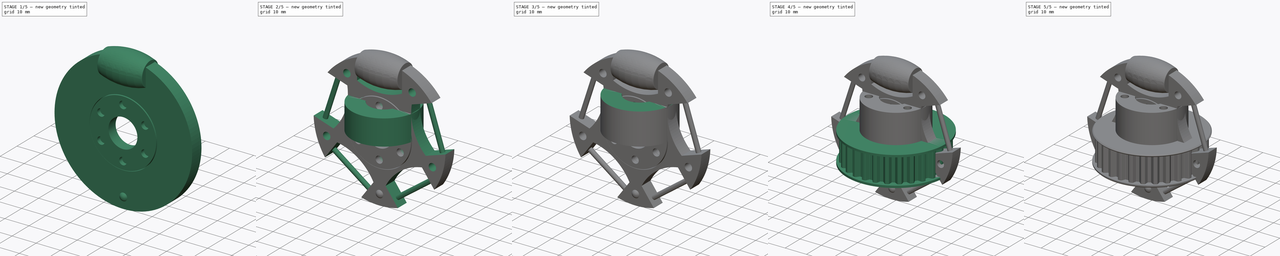
[diagram: build sequence overview — one tinted view per stage of 5, left to right]
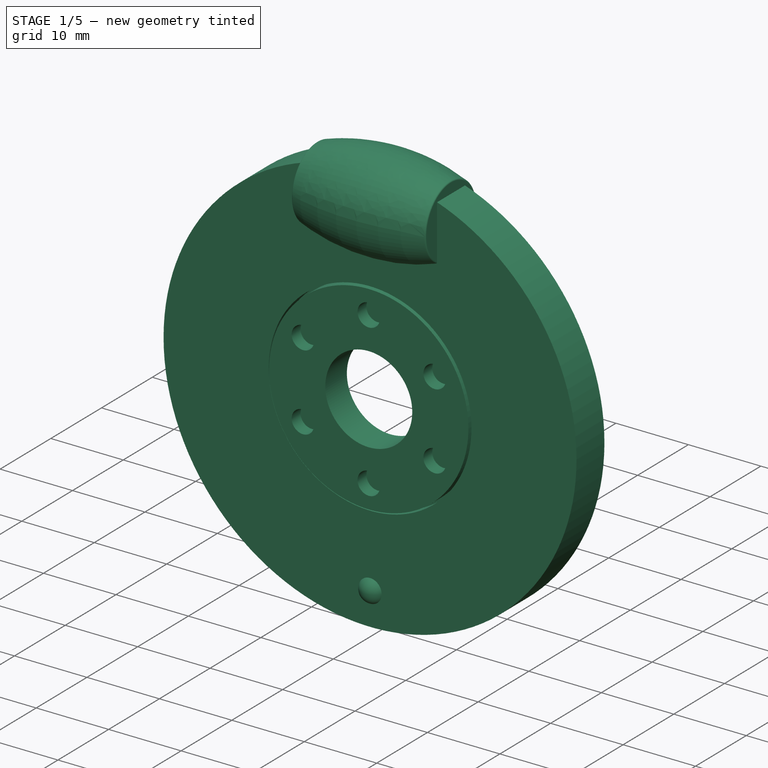
[diagram: stage 1 of 5 — iso view after this stage's code; geometry added in this stage tinted green]
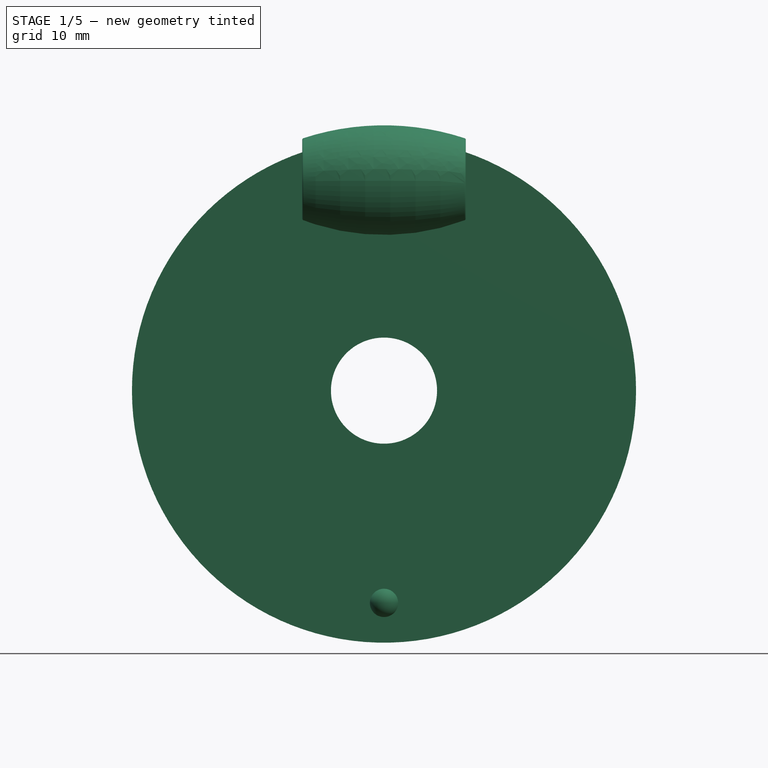
[diagram: stage 1 of 5 — front view after this stage's code; geometry added in this stage tinted green]
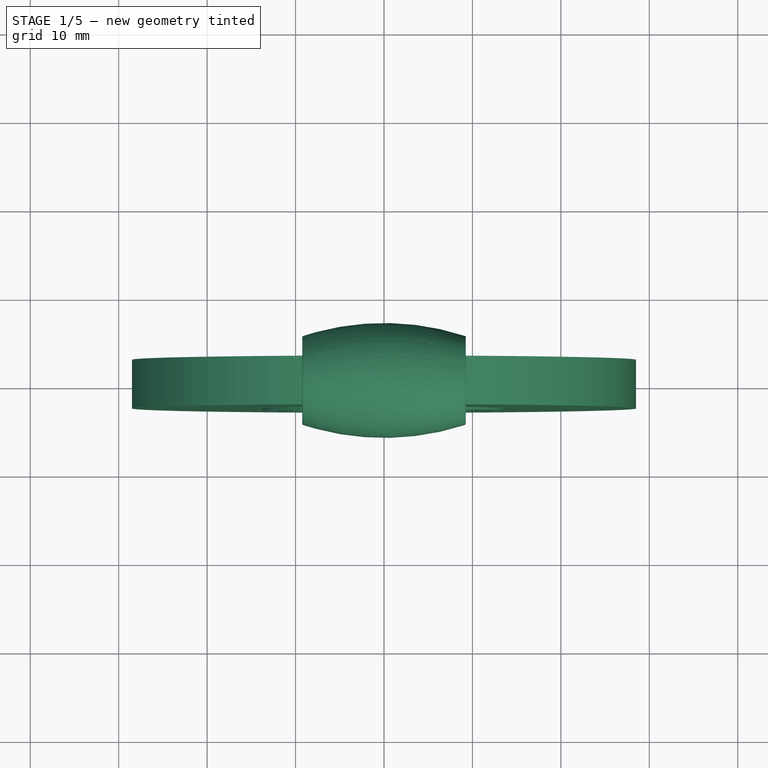
[diagram: stage 1 of 5 — top view after this stage's code; geometry added in this stage tinted green]
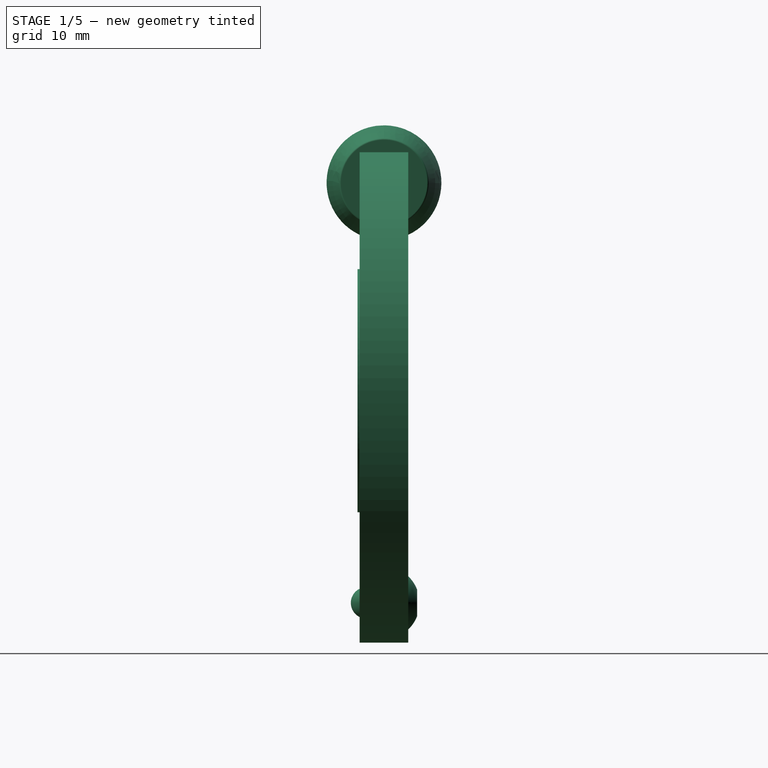
[diagram: stage 1 of 5 — right view after this stage's code; geometry added in this stage tinted green]
FCSTD DOCUMENT  (FreeCAD 2023.131R26244 +5365 (Git))
Label: omniwheel
License: Creative Commons Attribution-NoDerivatives
LicenseURL: http://creativecommons.org/licenses/by-nd/4.0/
objects: Sketcher::SketchObject×25, App::Link×20, PartDesign::Pocket×12, PartDesign::Pad×10, PartDesign::PolarPattern×10, PartDesign::Body×7, App::Part×7, PartDesign::Chamfer×4, PartDesign::Revolution×3, TechDraw::DrawProjGroupItem×3, TechDraw::DrawProjGroup×3, PartDesign::Plane×2, PartDesign::Fillet×2, PartDesign::Line×2, PartDesign::Mirrored×1, App::DocumentObjectGroup×1, TechDraw::DrawSVGTemplate×1, TechDraw::DrawPage×1
note: 187 computed .brp shape members not serialized (recipe doc carries the construction recipe); baked Part::Feature solids carry a one-line shape summary decoded from their .brp
EXTERNAL_REF file=generic-hardware.FCStd obj=Part022
EXTERNAL_REF file=generic-hardware.FCStd obj=Part001

FEATURE [PartDesign::Body] Body045  label="Bague 8x10mm"
  AutoGroupSolids = false
  ClaimAllChildren = false
  ExportMode = 0
  Group = -> [Sketch093,Pad055,Chamfer033]
  InvalidShape = false
  Origin = -> Origin069
  SingleSolid = true
  Tip = -> Chamfer033
  TreeRank = 0
  ValidateShape = true
  _ExportChildren = -> [Pad055,Chamfer033]
  _GroupVersion = 1
FEATURE [App::Link] Link080  label="Link080(MF128)"
  AutoLinkLabel = true
  AutoPlacement = true
  LinkedObject = -> <external generic-hardware.FCStd>#Part022
  SyncGroupVisibility = false
  TreeRank = 0
  _LinkVersion = 1
FEATURE [Sketcher::SketchObject] Sketch021
  ArcFitTolerance = 0
  AttachmentSupport = -> [XZ_Plane056]
  ExternalBSplineMaxDegree = 0
  ExternalBSplineTolerance = 0
  FullyConstrained = true
  InternalTolerance = 1e-06
  InvalidShape = false
  MakeInternals = false
  MapMode = 5
  Placement = pos=(0,0,0) rot=(1,0,0;1.5708rad)
  Support = -> [XZ_Plane056]
  TreeRank = 0
  ValidateShape = true
  sketch-geometry (2):
    g0: Circle CenterX=0 CenterY=0 CenterZ=0 NormalX=0 NormalY=0 NormalZ=1 AngleXU=0 Radius=13.75
    g1: Circle CenterX=0 CenterY=0 CenterZ=0 NormalX=0 NormalY=0 NormalZ=1 AngleXU=0 Radius=6
  constraints (4):
    c: Coincident(g0,g-1)
    c: Diameter(g0) = 27.5
    c: Coincident(g1,g0)
    c: Diameter(g1) = 12
FEATURE [PartDesign::Pad] Pad056
  AddSubType = 0
  AutoTaperInnerAngle = false
  CheckUpToFaceLimits = true
  ClaimChildren = false
  Direction = (1,1,1)
  Fit = 0
  FitJoin = 0
  InnerFit = 0
  InnerFitJoin = 0
  InvalidShape = false
  Length = 3
  Length2 = 100
  Linearize = true
  NewSolid = false
  Placement = pos=(0,0,0) rot=(1,0,0;1.5708rad)
  Profile = -> Sketch021
  Refine = true
  Suppress = false
  TaperInnerAngle = 0
  TaperInnerAngleRev = 0
  TreeRank = 0
  Type = 0
  ValidateShape = true
  _ProfileBasedVersion = 1
FEATURE [Sketcher::SketchObject] Sketch094
  ArcFitTolerance = 0
  AttachmentSupport = -> [XZ_Plane056]
  ExternalBSplineMaxDegree = 0
  ExternalBSplineTolerance = 0
  FullyConstrained = true
  InternalTolerance = 1e-06
  InvalidShape = false
  MakeInternals = false
  MapMode = 5
  Placement = pos=(0,0,0) rot=(1,0,0;1.5708rad)
  Support = -> [XZ_Plane056]
  TreeRank = 0
  ValidateShape = true
  sketch-geometry (1):
    g0: Circle CenterX=0 CenterY=10.5 CenterZ=0 NormalX=0 NormalY=0 NormalZ=1 AngleXU=0 Radius=1.55
  constraints (3):
    c: PointOnObject(g0,g-2)
    c: DistanceY(g-1,g0) = 10.5
    c: Diameter(g0) = 3.1
FEATURE [PartDesign::Pocket] Pocket035
  AddSubType = 1
  AutoTaperInnerAngle = false
  BaseFeature = -> Pad056
  CheckUpToFaceLimits = true
  ClaimChildren = false
  Fit = 0
  FitJoin = 0
  InnerFit = 0
  InnerFitJoin = 0
  InvalidShape = false
  Length = 5
  Length2 = 100
  Linearize = true
  NewSolid = false
  Placement = pos=(0,0,0) rot=(1,0,0;1.5708rad)
  Profile = -> Sketch094
  Refine = true
  Reversed = true
  Suppress = false
  TaperInnerAngle = 0
  TaperInnerAngleRev = 0
  TreeRank = 0
  Type = 1
  ValidateShape = true
  _ProfileBasedVersion = 1
  _Version = 0
FEATURE [PartDesign::PolarPattern] PolarPattern016
  AddSubType = 0
  Angle = 360
  Axis = -> Y_Axis056
  BaseFeature = -> Pocket035
  CopyShape = false
  InvalidShape = false
  NewSolid = false
  Occurrences = 6
  ParallelTransform = true
  Placement = pos=(0,0,0) rot=(1,0,0;1.5708rad)
  Refine = true
  SubTransform = true
  Suppress = false
  TreeRank = 0
  ValidateShape = true
  _Version = 0
FEATURE [PartDesign::Body] Body048  label="Spacer001"
  AutoGroupSolids = false
  ClaimAllChildren = false
  ExportMode = 0
  Group = -> [Sketch101,Pad060,Sketch102,Pocket039,Sketch103,Pocket040,PolarPattern021,DatumPlane006,Sketch104,Pocket041,PolarPattern022,Chamfer037,Chamfer036]
  InvalidShape = false
  Origin = -> Origin074
  SingleSolid = true
  Tip = -> Chamfer036
  TreeRank = 0
  ValidateShape = true
  _ExportChildren = -> [Pad060,Pocket039,Pocket040,PolarPattern021,DatumPlane006,Pocket041,PolarPattern022,Chamfer037,Chamfer036]
  _GroupVersion = 1
FEATURE [App::Part] Spacer
  ClaimAllChildren = false
  ExportMode = 1
  Group = -> [Body048,Link081]
  Origin = -> Origin005
  Placement = pos=(0,0,0) rot=(1,0,0;4.71239rad)
  TreeRank = 0
  _ExportChildren = -> [Body048,Link081]
  _GroupVersion = 1
FEATURE [Sketcher::SketchObject] Sketch095
  ArcFitTolerance = 0
  AttachmentSupport = -> [XZ_Plane057]
  ExternalBSplineMaxDegree = 0
  ExternalBSplineTolerance = 0
  FullyConstrained = true
  InternalTolerance = 1e-06
  InvalidShape = false
  MakeInternals = false
  MapMode = 5
  Placement = pos=(0,0,0) rot=(1,0,0;1.5708rad)
  Support = -> [XZ_Plane057]
  TreeRank = 0
  ValidateShape = true
  sketch-geometry (2):
    g0: Circle CenterX=0 CenterY=0 CenterZ=0 NormalX=0 NormalY=0 NormalZ=1 AngleXU=0 Radius=14
    g1: Circle CenterX=0 CenterY=0 CenterZ=0 NormalX=0 NormalY=0 NormalZ=1 AngleXU=0 Radius=28.5
  constraints (4):
    c: Coincident(g0,g-1)
    c: Diameter(g0) = 28
    c: Coincident(g1,g0)
    c: Diameter(g1) = 57
FEATURE [PartDesign::Pad] Pad057
  AddSubType = 0
  AutoTaperInnerAngle = false
  CheckUpToFaceLimits = true
  ClaimChildren = false
  Direction = (1,1,1)
  Fit = 0
  FitJoin = 0
  InnerFit = 0
  InnerFitJoin = 0
  InvalidShape = false
  Length = 5.5
  Length2 = 100
  Midplane = true
  NewSolid = false
  Placement = pos=(0,0,0) rot=(1,0,0;1.5708rad)
  Profile = -> Sketch095
  Refine = true
  Suppress = false
  TaperInnerAngle = 0
  TaperInnerAngleRev = 0
  TreeRank = 0
  Type = 0
  UsePipeForDraft = true
  ValidateShape = true
  _ProfileBasedVersion = 0
FEATURE [Sketcher::SketchObject] Sketch096
  ArcFitTolerance = 0
  AttachmentSupport = -> [XZ_Plane057]
  ExternalBSplineMaxDegree = 0
  ExternalBSplineTolerance = 0
  ExternalGeometry = -> [Pad057]
  FullyConstrained = true
  InternalTolerance = 1e-06
  InvalidShape = false
  MakeInternals = false
  MapMode = 5
  Placement = pos=(0,0,0) rot=(1,0,0;1.5708rad)
  Support = -> [XZ_Plane057]
  TreeRank = 0
  ValidateShape = true
  sketch-geometry (1):
    g0: Circle CenterX=0 CenterY=0 CenterZ=0 NormalX=0 NormalY=0 NormalZ=1 AngleXU=0 Radius=6
  constraints (2):
    c: Coincident(g0,g-1)
    c: Diameter(g0) = 12
FEATURE [PartDesign::Pad] Pad058
  AddSubType = 0
  AutoTaperInnerAngle = false
  BaseFeature = -> Pad057
  CheckUpToFaceLimits = true
  ClaimChildren = false
  Direction = (1,1,1)
  Fit = 0
  FitJoin = 0
  InnerFit = 0
  InnerFitJoin = 0
  InvalidShape = false
  Length = 2.5
  Length2 = 100
  Midplane = true
  NewSolid = false
  Placement = pos=(0,0,0) rot=(1,0,0;1.5708rad)
  Profile = -> Sketch096
  Refine = true
  Suppress = false
  TaperInnerAngle = 0
  TaperInnerAngleRev = 0
  TreeRank = 0
  Type = 0
  UsePipeForDraft = true
  ValidateShape = true
  _ProfileBasedVersion = 0
FEATURE [PartDesign::Body] Body047  label="MainPlate"
  AutoGroupSolids = false
  ClaimAllChildren = false
  ExportMode = 0
  Group = -> [Sketch095,Pad057,Sketch096,Pad058,Sketch097,Pocket036,Sketch098,PolarPattern017,Pad059,PolarPattern018,Sketch099,Pocket037,PolarPattern019,Sketch100,Pocket038,PolarPattern020]
  InvalidShape = false
  Origin = -> Origin071
  SingleSolid = true
  Tip = -> PolarPattern020
  TreeRank = 0
  ValidateShape = true
  _ExportChildren = -> [Pad057,Pad058,Pocket036,PolarPattern017,Pad059,PolarPattern018,Pocket037,PolarPattern019,Pocket038,PolarPattern020]
  _GroupVersion = 1
FEATURE [App::Link] Link084  label="Roller001"
  AutoLinkLabel = false
  AutoPlacement = true
  LinkPlacement = pos=(0,0,0) rot=(0,-1,0;1.25664rad)
  LinkedObject = -> Body050
  Placement = pos=(0,0,0) rot=(0,-1,0;1.25664rad)
  SyncGroupVisibility = false
  TreeRank = 0
  _LinkVersion = 1
FEATURE [App::Link] Link085  label="Roller002"
  AutoLinkLabel = false
  AutoPlacement = true
  LinkPlacement = pos=(0,0,0) rot=(0,1,0;3.76991rad)
  LinkedObject = -> Link084
  Placement = pos=(0,0,0) rot=(0,1,0;3.76991rad)
  SyncGroupVisibility = false
  TreeRank = 0
  _LinkVersion = 1
FEATURE [App::Link] Link086  label="Roller003"
  AutoLinkLabel = false
  AutoPlacement = true
  LinkPlacement = pos=(0,0,0) rot=(0,1,0;2.51327rad)
  LinkedObject = -> Link085
  Placement = pos=(0,0,0) rot=(0,1,0;2.51327rad)
  SyncGroupVisibility = false
  TreeRank = 0
  _LinkVersion = 1
FEATURE [App::Link] Link087  label="Roller004"
  AutoLinkLabel = false
  AutoPlacement = true
  LinkPlacement = pos=(0,0,0) rot=(0,1,0;1.25664rad)
  LinkedObject = -> Link086
  Placement = pos=(0,0,0) rot=(0,1,0;1.25664rad)
  SyncGroupVisibility = false
  TreeRank = 0
  _LinkVersion = 1
FEATURE [App::Link] Link088  label="Rivet001"
  AutoLinkLabel = false
  AutoPlacement = true
  LinkPlacement = pos=(0,0,0) rot=(0,-1,0;1.25664rad)
  LinkedObject = -> Body051
  Placement = pos=(0,0,0) rot=(0,-1,0;1.25664rad)
  SyncGroupVisibility = false
  TreeRank = 0
  _LinkVersion = 1
FEATURE [App::Link] Link089  label="Rivet002"
  AutoLinkLabel = false
  AutoPlacement = true
  LinkPlacement = pos=(0,0,0) rot=(0,1,0;3.76991rad)
  LinkedObject = -> Link088
  Placement = pos=(0,0,0) rot=(0,1,0;3.76991rad)
  SyncGroupVisibility = false
  TreeRank = 0
  _LinkVersion = 1
FEATURE [App::Link] Link090  label="Rivet003"
  AutoLinkLabel = false
  AutoPlacement = true
  LinkPlacement = pos=(0,0,0) rot=(0,1,0;2.51327rad)
  LinkedObject = -> Link089
  Placement = pos=(0,0,0) rot=(0,1,0;2.51327rad)
  SyncGroupVisibility = false
  TreeRank = 0
  _LinkVersion = 1
FEATURE [App::Link] Link091  label="Rivet004"
  AutoLinkLabel = false
  AutoPlacement = true
  LinkPlacement = pos=(0,0,0) rot=(0,1,0;1.25664rad)
  LinkedObject = -> Link090
  Placement = pos=(0,0,0) rot=(0,1,0;1.25664rad)
  SyncGroupVisibility = false
  TreeRank = 0
  _LinkVersion = 1
FEATURE [Sketcher::SketchObject] Sketch114
  ArcFitTolerance = 0
  AttachmentSupport = -> [XZ_Plane060]
  ExternalBSplineMaxDegree = 0
  ExternalBSplineTolerance = 0
  FullyConstrained = true
  InternalTolerance = 1e-06
  InvalidShape = false
  MakeInternals = false
  MapMode = 5
  Placement = pos=(0,0,0) rot=(1,0,0;1.5708rad)
  Support = -> [XZ_Plane060]
  TreeRank = 0
  ValidateShape = true
  sketch-geometry (8):
    g0: ArcOfCircle CenterX=1.7e-15 CenterY=0.729167 CenterZ=0 NormalX=0 NormalY=0 NormalZ=1 AngleXU=0 Radius=29.2708 StartAngle=1.24927 EndAngle=1.89232
    g1: LineSegment [constr] StartX=-9.25 StartY=28.5 StartZ=0 EndX=-9.25 EndY=23.5 EndZ=0
    g2: LineSegment [constr] StartX=-9.25 StartY=23.5 StartZ=0 EndX=9.25 EndY=23.5 EndZ=0
    g3: LineSegment [constr] StartX=9.25 StartY=23.5 StartZ=0 EndX=9.25 EndY=28.5 EndZ=0
    g4: GeomPoint [constr] X=0 Y=30 Z=0
    g5: LineSegment StartX=-9.25 StartY=28.5 StartZ=0 EndX=-9.25 EndY=24.5 EndZ=0
    g6: LineSegment StartX=-9.25 StartY=24.5 StartZ=0 EndX=9.25 EndY=24.5 EndZ=0
    g7: LineSegment StartX=9.25 StartY=24.5 StartZ=0 EndX=9.25 EndY=28.5 EndZ=0
  constraints (22):
    c: Coincident(g1,g0)
    c: Vertical(g1)
    c: Coincident(g2,g1)
    c: Horizontal(g2)
    c: Coincident(g3,g2)
    c: Coincident(g3,g0)
    c: Vertical(g3)
    c: Symmetric(g0,g0,g-2)
    c: PointOnObject(g4,g0)
    c: PointOnObject(g4,g-2)
    c: DistanceY(g4) = 30
    c: DistanceX(g0,g0) = 18.5
    c: DistanceY(g2,g4) = 6.5
    c: DistanceY(g3,g3) = 5
    c: Coincident(g5,g0)
    c: PointOnObject(g5,g1)
    c: Coincident(g6,g5)
    c: PointOnObject(g6,g3)
    c: Horizontal(g6)
    c: Coincident(g7,g6)
    c: Coincident(g7,g0)
    c: DistanceY(g2,g6) = 1
FEATURE [PartDesign::Line] DatumLine001
  AttacherType = Attacher::AttachEngineLine
  AttachmentOffset = pos=(0,23.5,0) rot=(0,0,1;0rad)
  AttachmentSupport = -> [XY_Plane060]
  InvalidShape = false
  Length = 80
  MapMode = 16
  MinimumLength = 80
  Placement = pos=(0,0,23.5) rot=(0.57735,0.57735,0.57735;2.0944rad)
  ResizeMode = 1
  Support = -> [XY_Plane060]
  TreeRank = 0
  ValidateShape = true
FEATURE [PartDesign::Revolution] Revolution003
  AddSubType = 0
  Angle = 360
  Axis = (1,0,0)
  Base = (0,0,23.5)
  ClaimChildren = false
  Fit = 0
  FitJoin = 0
  InnerFit = 0
  InnerFitJoin = 0
  InvalidShape = false
  NewSolid = false
  Placement = pos=(0,0,0) rot=(1,0,0;1.5708rad)
  Profile = -> Sketch114
  ReferenceAxis = -> DatumLine001
  Refine = true
  Suppress = false
  TreeRank = 0
  ValidateShape = true
  _ProfileBasedVersion = 0
FEATURE [PartDesign::Fillet] Fillet029
  AddSubType = 0
  Base = -> Revolution003 [Edge2,Edge1]
  BaseFeature = -> Revolution003
  InvalidShape = false
  NewSolid = false
  Placement = pos=(0,0,0) rot=(1,0,0;1.5708rad)
  Radius = 0.2
  Refine = true
  SupportTransform = false
  Suppress = false
  TreeRank = 0
  ValidateShape = true
FEATURE [PartDesign::Body] Body050  label="Roller"
  AutoGroupSolids = false
  ClaimAllChildren = false
  ExportMode = 0
  Group = -> [Sketch114,DatumLine001,Revolution003,Fillet029]
  InvalidShape = false
  Origin = -> Origin077
  SingleSolid = true
  Tip = -> Fillet029
  TreeRank = 0
  ValidateShape = true
  _ExportChildren = -> [DatumLine001,Revolution003,Fillet029]
  _GroupVersion = 1
FEATURE [App::Part] Part020  label="Rollers"
  ClaimAllChildren = false
  ExportMode = 1
  Group = -> [Body050,Link084,Link085,Link086,Link087]
  Origin = -> Origin072
  TreeRank = 0
  _ExportChildren = -> [Body050,Link084,Link085,Link086,Link087]
  _GroupVersion = 1
FEATURE [Sketcher::SketchObject] Sketch115
  ArcFitTolerance = 0
  AttachmentSupport = -> [YZ_Plane061]
  ExternalBSplineMaxDegree = 0
  ExternalBSplineTolerance = 0
  FullyConstrained = true
  InternalTolerance = 1e-06
  InvalidShape = false
  MakeInternals = false
  MapMode = 5
  Placement = pos=(0,0,0) rot=(0.57735,0.57735,0.57735;2.0944rad)
  Support = -> [YZ_Plane061]
  TreeRank = 0
  ValidateShape = true
  sketch-geometry (10):
    g0: LineSegment [constr] StartX=-3.75 StartY=-24 StartZ=0 EndX=3.75 EndY=-24 EndZ=0
    g1: LineSegment [constr] StartX=3.75 StartY=-24 StartZ=0 EndX=3.75 EndY=-22.5 EndZ=0
    g2: ArcOfCircle CenterX=-1.97 CenterY=-24 CenterZ=0 NormalX=0 NormalY=0 NormalZ=1 AngleXU=0 Radius=1.78 StartAngle=2.02439 EndAngle=3.14159
    g3: LineSegment StartX=-2.75 StartY=-22.4 StartZ=0 EndX=2.75 EndY=-22.4 EndZ=0
    g4: ArcOfCircle CenterX=-0.125 CenterY=-24 CenterZ=0 NormalX=0 NormalY=0 NormalZ=1 AngleXU=0 Radius=4.15519 StartAngle=0.369334 EndAngle=0.806672
    g5: LineSegment StartX=2.75 StartY=-22.4 StartZ=0 EndX=2.75 EndY=-21 EndZ=0
    g6: LineSegment StartX=-3.75 StartY=-24 StartZ=0 EndX=2.75 EndY=-24 EndZ=0
    g7: LineSegment StartX=2.75 StartY=-24 StartZ=0 EndX=2.75 EndY=-23.2 EndZ=0
    g8: LineSegment StartX=2.75 StartY=-23.2 StartZ=0 EndX=3.75 EndY=-23.2 EndZ=0
    g9: LineSegment StartX=3.75 StartY=-23.2 StartZ=0 EndX=3.75 EndY=-22.5 EndZ=0
  constraints (31):
    c: Horizontal(g0)
    c: Coincident(g1,g0)
    c: Vertical(g1)
    c: PointOnObject(g2,g0)
    c: Coincident(g2,g0)
    c: Coincident(g3,g2)
    c: Horizontal(g3)
    c: PointOnObject(g4,g0)
    c: Coincident(g4,g1)
    c: Coincident(g5,g3)
    c: Coincident(g5,g4)
    c: Vertical(g5)
    c: DistanceY(g0) = -24
    c: DistanceX(g2) = -2.75
    c: DistanceX(g3) = 2.75
    c: DistanceY(g0,g4) = 3
    c: DistanceY(g1,g1) = 1.5
    c: DistanceX(g3,g1) = 1
    c: DistanceY(g0,g3) = 1.6
    c: DistanceX(g0,g2) = 1
    c: Coincident(g6,g2)
    c: PointOnObject(g6,g0)
    c: Coincident(g7,g6)
    c: Vertical(g7)
    c: Coincident(g8,g7)
    c: PointOnObject(g8,g1)
    c: Horizontal(g8)
    c: Coincident(g9,g8)
    c: Coincident(g9,g4)
    c: DistanceY(g7,g7) = 0.8
    c: DistanceX(g8,g8) = 1
FEATURE [PartDesign::Line] DatumLine002
  AttacherType = Attacher::AttachEngineLine
  AttachmentSupport = -> [Sketch115]
  InvalidShape = false
  Length = 10
  MapMode = 29
  MinimumLength = 10
  Placement = pos=(5.3e-15,0,-24) rot=(0,0.707107,0.707107;3.14159rad)
  ResizeMode = 0
  Support = -> [Sketch115]
  TreeRank = 0
  ValidateShape = true
FEATURE [PartDesign::Revolution] Revolution004
  AddSubType = 0
  Angle = 360
  Axis = (2e-16,1,-2e-16)
  Base = (5.3e-15,0,-24)
  ClaimChildren = false
  Fit = 0
  FitJoin = 0
  InnerFit = 0
  InnerFitJoin = 0
  InvalidShape = false
  NewSolid = false
  Placement = pos=(0,0,0) rot=(0.57735,0.57735,0.57735;2.0944rad)
  Profile = -> Sketch115
  ReferenceAxis = -> DatumLine002
  Refine = true
  Reversed = true
  Suppress = false
  TreeRank = 0
  ValidateShape = true
  _ProfileBasedVersion = 0
FEATURE [PartDesign::Body] Body051  label="Rivet"
  AutoGroupSolids = false
  ClaimAllChildren = false
  ExportMode = 0
  Group = -> [Sketch115,DatumLine002,Revolution004]
  InvalidShape = false
  Origin = -> Origin078
  SingleSolid = true
  Tip = -> Revolution004
  TreeRank = 0
  ValidateShape = true
  _ExportChildren = -> [DatumLine002,Revolution004]
  _GroupVersion = 1
FEATURE [App::Part] Part021  label="Rivets"
  ClaimAllChildren = false
  ExportMode = 1
  Group = -> [Body051,Link088,Link089,Link090,Link091]
  Origin = -> Origin073
  TreeRank = 0
  _ExportChildren = -> [Body051,Link088,Link089,Link090,Link091]
  _GroupVersion = 1
FEATURE [App::Part] Part018  label="OmniPancake"
  ClaimAllChildren = false
  ExportMode = 1
  Group = -> [Body047,Part020,Part021]
  Origin = -> Origin067
  TreeRank = 0
  _ExportChildren = -> [Body047,Part020,Part021]
  _GroupVersion = 1
FEATURE [App::Link] Link072  label="Link072(ExternalPlate)"
  AutoLinkLabel = true
  AutoPlacement = true
  LinkedObject = -> Part017
  SyncGroupVisibility = false
  TreeRank = 0
  _LinkVersion = 1
FEATURE [App::Link] Link073  label="Link073(OmniPancake)"
  AutoLinkLabel = true
  AutoPlacement = true
  LinkPlacement = pos=(0,-4.25,0) rot=(0,0,1;0rad)
  LinkedObject = -> Part018
  Placement = pos=(0,-4.25,0) rot=(0,0,1;0rad)
  SyncGroupVisibility = false
  TreeRank = 0
  _LinkVersion = 1
FEATURE [App::Link] Link074  label="Link074(Spacer)"
  AutoLinkLabel = true
  AutoPlacement = true
  LinkPlacement = pos=(2.25114e-06,-5.49998,-7.67409e-06) rot=(0,-0.707107,0.707107;3.14159rad)
  LinkedObject = -> Spacer
  Placement = pos=(2.25114e-06,-5.49998,-7.67409e-06) rot=(0,-0.707107,0.707107;3.14159rad)
  SyncGroupVisibility = false
  TreeRank = 0
  _LinkVersion = 1
FEATURE [App::Link] Link075  label="Link075(OmniPancake)"
  AutoLinkLabel = true
  AutoPlacement = true
  LinkPlacement = pos=(0,-17.75,0) rot=(0,1,0;2.0944rad)
  LinkedObject = -> Part018
  Placement = pos=(0,-17.75,0) rot=(0,1,0;2.0944rad)
  SyncGroupVisibility = false
  TreeRank = 0
  _LinkVersion = 1
FEATURE [App::Link] Link076  label="Link076(Spacer)"
  AutoLinkLabel = true
  AutoPlacement = true
  LinkPlacement = pos=(0,-30,-1.819e-12) rot=(-1,0,0;1.5708rad)
  LinkedObject = -> Spacer
  Placement = pos=(0,-30,-1.819e-12) rot=(-1,0,0;1.5708rad)
  SyncGroupVisibility = false
  TreeRank = 0
  _LinkVersion = 1
FEATURE [App::Link] Link077  label="Link077(OmniPancake)"
  AutoLinkLabel = true
  AutoPlacement = true
  LinkPlacement = pos=(0,-31.25,0) rot=(0,-1,0;2.0944rad)
  LinkedObject = -> Part018
  Placement = pos=(0,-31.25,0) rot=(0,-1,0;2.0944rad)
  SyncGroupVisibility = false
  TreeRank = 0
  _LinkVersion = 1
FEATURE [App::Link] Link078  label="Link078(Pulley28Teeth)"
  AutoLinkLabel = true
  AutoPlacement = true
  LinkPlacement = pos=(0,-46.2,-8.13826e-06) rot=(-1,0,0;1.5708rad)
  LinkedObject = -> Part019
  Placement = pos=(0,-46.2,-8.13826e-06) rot=(-1,0,0;1.5708rad)
  SyncGroupVisibility = false
  TreeRank = 0
  _LinkVersion = 1
FEATURE [App::Link] Link079  label="Link079(Bague 8x10mm)"
  AutoLinkLabel = true
  AutoPlacement = true
  LinkPlacement = pos=(0,-51.2,0) rot=(0,0,1;0rad)
  LinkedObject = -> Body045
  Placement = pos=(0,-51.2,0) rot=(0,0,1;0rad)
  SyncGroupVisibility = false
  TreeRank = 0
  _LinkVersion = 1
FEATURE [App::Part] Part016  label="OmniWheelequipedV2"
  ClaimAllChildren = false
  ExportMode = 1
  Group = -> [Link072,Link073,Link074,Link075,Link076,Link077,Link078,Link079]
  Origin = -> Origin018
  TreeRank = 0
  _ExportChildren = -> [Link072,Link073,Link074,Link075,Link076,Link077,Link078,Link079]
  _GroupVersion = 1
FEATURE [App::DocumentObjectGroup] Group  label="Parts"
  ClaimAllChildren = true
  ExportMode = 1
  Group = -> [Body045,Part017,Part019,Spacer,Part018]
  TreeRank = 0
  _GroupVersion = 1
FEATURE [TechDraw::DrawSVGTemplate] Template
  Height = 210
  Orientation = 1
  TreeRank = 2
  Width = 297
FEATURE [TechDraw::DrawProjGroupItem] ProjItem  label="Front"
  CoarseView = false
  Direction = (0,1,0)
  Focus = 100
  HardHidden = false
  IsoCount = 0
  IsoHidden = false
  IsoVisible = false
  LockPosition = true
  Perspective = false
  Rotation = 0
  RotationVector = (1,0,0)
  ScaleType = 2
  SeamHidden = false
  SeamVisible = true
  SmoothHidden = false
  SmoothVisible = true
  Source = -> [PolarPattern016]
  TreeRank = 5
  Type = 0
  X = 0
  XDirection = (1,0,0)
  Y = 0
FEATURE [TechDraw::DrawProjGroup] ProjGroup
  Anchor = -> ProjItem
  AutoDistribute = true
  LockPosition = false
  ProjectionType = 0
  Rotation = 0
  ScaleType = 0
  Source = -> [PolarPattern016]
  TreeRank = 6
  Views = -> [ProjItem]
  X = 15.2193
  Y = 194.811
  spacingX = 15
  spacingY = 15
FEATURE [TechDraw::DrawProjGroupItem] ProjItem001  label="Front001"
  CoarseView = false
  Direction = (0,1,0)
  Focus = 100
  HardHidden = false
  IsoCount = 0
  IsoHidden = false
  IsoVisible = false
  LockPosition = true
  Perspective = false
  Rotation = 0
  RotationVector = (1,0,0)
  ScaleType = 2
  SeamHidden = false
  SeamVisible = true
  SmoothHidden = false
  SmoothVisible = true
  Source = -> [PolarPattern016]
  TreeRank = 8
  Type = 0
  X = 0
  XDirection = (1,0,0)
  Y = 0
FEATURE [TechDraw::DrawProjGroup] ProjGroup001
  Anchor = -> ProjItem001
  AutoDistribute = true
  LockPosition = false
  ProjectionType = 0
  Rotation = 0
  ScaleType = 0
  Source = -> [PolarPattern016]
  TreeRank = 9
  Views = -> [ProjItem001]
  X = 15.2584
  Y = 165.64
  spacingX = 15
  spacingY = 15
FEATURE [TechDraw::DrawProjGroupItem] ProjItem002  label="Front002"
  CoarseView = false
  Direction = (0,1,0)
  Focus = 100
  HardHidden = false
  IsoCount = 0
  IsoHidden = false
  IsoVisible = false
  LockPosition = true
  Perspective = false
  Rotation = 0
  RotationVector = (1,0,0)
  ScaleType = 2
  SeamHidden = false
  SeamVisible = true
  SmoothHidden = false
  SmoothVisible = true
  Source = -> [PolarPattern016]
  TreeRank = 11
  Type = 0
  X = 0
  XDirection = (1,0,0)
  Y = 0
FEATURE [TechDraw::DrawProjGroup] ProjGroup002
  Anchor = -> ProjItem002
  AutoDistribute = true
  LockPosition = false
  ProjectionType = 0
  Rotation = 0
  ScaleType = 0
  Source = -> [PolarPattern016]
  TreeRank = 12
  Views = -> [ProjItem002]
  X = 15.5365
  Y = 136.155
  spacingX = 15
  spacingY = 15
FEATURE [TechDraw::DrawPage] Page
  KeepUpdated = true
  NextBalloonIndex = 1
  ProjectionType = 0
  Template = -> Template
  TreeRank = 3
  Views = -> [ProjGroup,ProjGroup001,ProjGroup002]

RESOLVED EXTERNAL PARTS (link-assembly join: the EXTERNAL_REF files above that resolve inside this repo's crawl, each included once):
---- part generic-hardware.FCStd = doc fcstd_4d7483fc6a56 (179892 chars; too large to inline — full recipe in that document) ----
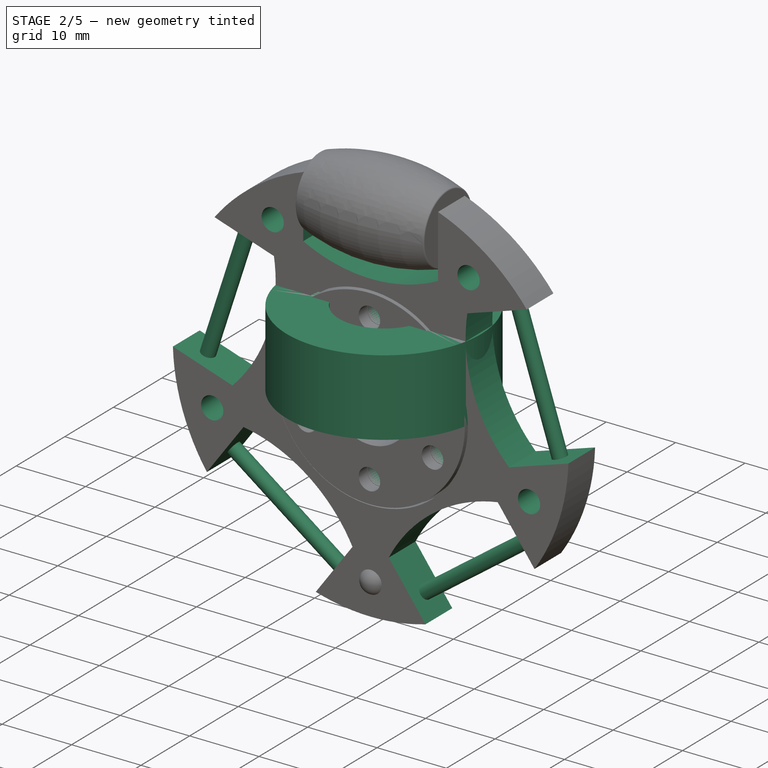
[diagram: stage 2 of 5 — iso view after this stage's code; geometry added in this stage tinted green]
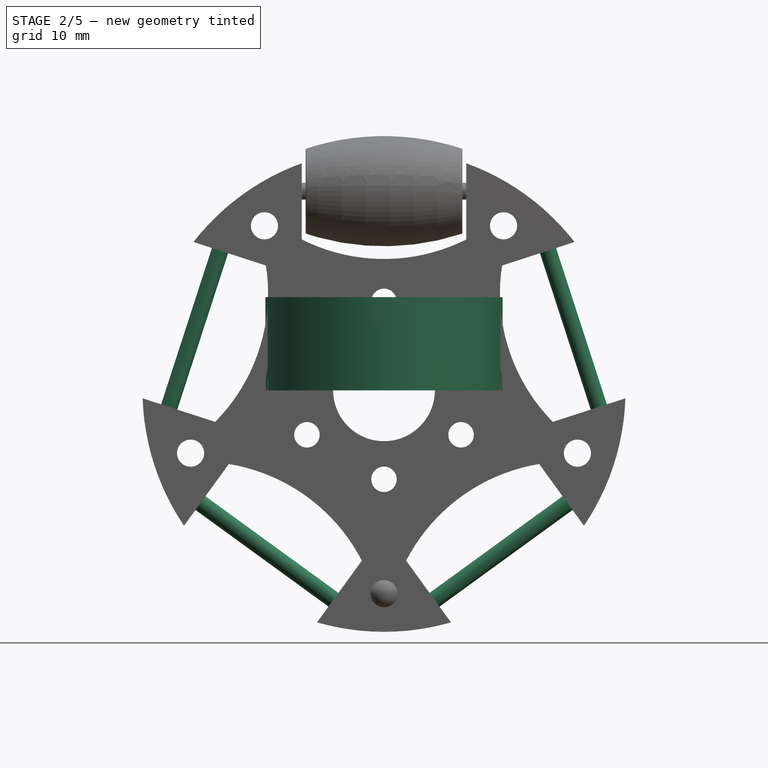
[diagram: stage 2 of 5 — front view after this stage's code; geometry added in this stage tinted green]
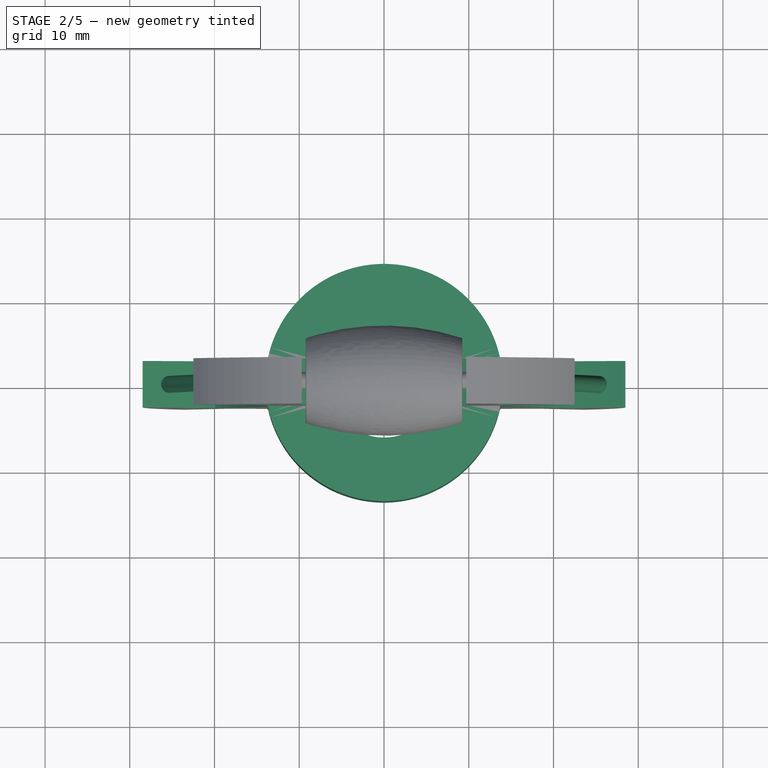
[diagram: stage 2 of 5 — top view after this stage's code; geometry added in this stage tinted green]
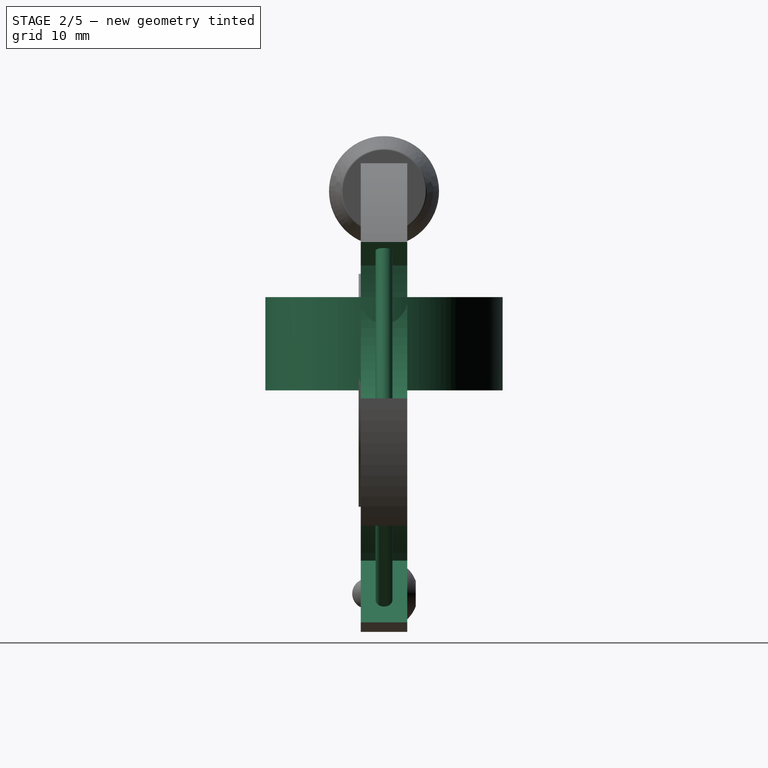
[diagram: stage 2 of 5 — right view after this stage's code; geometry added in this stage tinted green]
FEATURE [PartDesign::Body] Body049  label="Pulley001"
  AutoGroupSolids = false
  ClaimAllChildren = false
  ExportMode = 0
  Group = -> [Sketch105,Pad061,Sketch106,Pad062,Sketch107,Pad063,PolarPattern023,Sketch108,Pad064,DatumPlane007,Sketch109,Revolution002,Mirrored006,Sketch110,Pocket042,PolarPattern024,Sketch111,Pocket043,Sketch112,Pocket044,Sketch113,Pocket045,Sketch031,Pocket046,PolarPattern025,Fillet028,Chamfer038]
  InvalidShape = false
  Origin = -> Origin075
  Tip = -> Chamfer038
  TreeRank = 0
  ValidateShape = true
  _ExportChildren = -> [Pad061,Pad062,Pad063,PolarPattern023,Pad064,DatumPlane007,Revolution002,Mirrored006,Pocket042,PolarPattern024,Pocket043,Pocket044,Pocket045,Pocket046,PolarPattern025,Fillet028,Chamfer038]
  _GroupVersion = 1
FEATURE [App::Part] Part019  label="Pulley28Teeth"
  ClaimAllChildren = false
  ExportMode = 1
  Group = -> [Body049,Link082,Link083]
  Origin = -> Origin068
  Placement = pos=(0,0,0) rot=(1,0,0;1.5708rad)
  TreeRank = 0
  _ExportChildren = -> [Body049,Link082,Link083]
  _GroupVersion = 1
FEATURE [App::Link] Link081  label="Link081(MR148)"
  AutoLinkLabel = true
  AutoPlacement = true
  LinkedObject = -> <external generic-hardware.FCStd>#Part001
  SyncGroupVisibility = false
  TreeRank = 0
  _LinkVersion = 1
FEATURE [Sketcher::SketchObject] Sketch101
  ArcFitTolerance = 0
  AttachmentSupport = -> [XY_Plane058]
  ExternalBSplineMaxDegree = 0
  ExternalBSplineTolerance = 0
  FullyConstrained = true
  InternalTolerance = 1e-06
  InvalidShape = false
  MakeInternals = false
  MapMode = 5
  Support = -> [XY_Plane058]
  TreeRank = 0
  ValidateShape = true
  sketch-geometry (2):
    g0: Circle CenterX=0 CenterY=0 CenterZ=0 NormalX=0 NormalY=0 NormalZ=1 AngleXU=0 Radius=6.5
    g1: Circle CenterX=0 CenterY=0 CenterZ=0 NormalX=0 NormalY=0 NormalZ=1 AngleXU=0 Radius=14
  constraints (4):
    c: Coincident(g0,g-1)
    c: Coincident(g1,g0)
    c: Diameter(g1) = 28
    c: Diameter(g0) = 13
FEATURE [PartDesign::Pad] Pad060
  AddSubType = 0
  AutoTaperInnerAngle = false
  CheckUpToFaceLimits = true
  ClaimChildren = false
  Direction = (1,1,1)
  Fit = 0
  FitJoin = 0
  InnerFit = 0
  InnerFitJoin = 0
  InvalidShape = false
  Length = 11
  Length2 = 100
  NewSolid = false
  Profile = -> Sketch101
  Refine = true
  Suppress = false
  TaperInnerAngle = 0
  TaperInnerAngleRev = 0
  TreeRank = 0
  Type = 0
  UsePipeForDraft = true
  ValidateShape = true
  _ProfileBasedVersion = 0
FEATURE [Sketcher::SketchObject] Sketch097
  ArcFitTolerance = 0
  AttachmentSupport = -> [XZ_Plane057]
  ExternalBSplineMaxDegree = 0
  ExternalBSplineTolerance = 0
  ExternalGeometry = -> [Pad058]
  FullyConstrained = true
  InternalTolerance = 1e-06
  InvalidShape = false
  MakeInternals = false
  MapMode = 5
  Placement = pos=(0,0,0) rot=(1,0,0;1.5708rad)
  Support = -> [XZ_Plane057]
  TreeRank = 0
  ValidateShape = true
  sketch-geometry (5):
    g0: LineSegment StartX=-9.7 StartY=26.7985 StartZ=0 EndX=-9.7 EndY=17.7985 EndZ=0
    g1: LineSegment StartX=9.7 StartY=26.7985 StartZ=0 EndX=9.7 EndY=17.7985 EndZ=0
    g2: ArcOfCircle CenterX=1.9e-15 CenterY=37.1169 CenterZ=0 NormalX=0 NormalY=0 NormalZ=1 AngleXU=0 Radius=21.6169 StartAngle=4.24705 EndAngle=5.17773
    g3: GeomPoint [constr] X=0 Y=15.5 Z=0
    g4: ArcOfCircle CenterX=0 CenterY=0 CenterZ=0 NormalX=0 NormalY=0 NormalZ=1 AngleXU=0 Radius=28.5 StartAngle=1.22351 EndAngle=1.91809
  constraints (15):
    c: PointOnObject(g0,g-3)
    c: Vertical(g0)
    c: Vertical(g1)
    c: Symmetric(g1,g0,g-2)
    c: Equal(g0,g1)
    c: Coincident(g2,g0)
    c: Coincident(g2,g1)
    c: PointOnObject(g3,g2)
    c: PointOnObject(g3,g-2)
    c: DistanceY(g-1,g3) = 15.5
    c: DistanceY(g1,g1) = 9
    c: Coincident(g4,g-1)
    c: Coincident(g4,g0)
    c: Coincident(g4,g1)
    c: DistanceX(g0,g1) = 19.4
FEATURE [PartDesign::Pocket] Pocket036
  AddSubType = 1
  AutoTaperInnerAngle = false
  BaseFeature = -> Pad058
  CheckUpToFaceLimits = true
  ClaimChildren = false
  Fit = 0
  FitJoin = 0
  InnerFit = 0
  InnerFitJoin = 0
  InvalidShape = false
  Length = 5
  Length2 = 100
  Midplane = true
  NewSolid = false
  Placement = pos=(0,0,0) rot=(1,0,0;1.5708rad)
  Profile = -> Sketch097
  Refine = true
  Suppress = false
  TaperInnerAngle = 0
  TaperInnerAngleRev = 0
  TreeRank = 0
  Type = 1
  ValidateShape = true
  _ProfileBasedVersion = 0
  _Version = 0
FEATURE [Sketcher::SketchObject] Sketch098
  ArcFitTolerance = 0
  AttachmentSupport = -> [YZ_Plane057]
  ExternalBSplineMaxDegree = 0
  ExternalBSplineTolerance = 0
  FullyConstrained = true
  InternalTolerance = 1e-06
  InvalidShape = false
  MakeInternals = false
  MapMode = 5
  Placement = pos=(0,0,0) rot=(0.57735,0.57735,0.57735;2.0944rad)
  Support = -> [YZ_Plane057]
  TreeRank = 0
  ValidateShape = true
  sketch-geometry (3):
    g0: Circle CenterX=0 CenterY=23.5 CenterZ=0 NormalX=0 NormalY=0 NormalZ=1 AngleXU=0 Radius=1
    g1: Circle [constr] CenterX=0 CenterY=23.5 CenterZ=0 NormalX=0 NormalY=0 NormalZ=1 AngleXU=0 Radius=6.5
    g2: GeomPoint [constr] X=0 Y=30 Z=0
  constraints (7):
    c: PointOnObject(g0,g-2)
    c: Diameter(g0) = 2
    c: Coincident(g1,g0)
    c: Diameter(g1) = 13
    c: PointOnObject(g2,g1)
    c: PointOnObject(g2,g-2)
    c: DistanceY(g2) = 30
FEATURE [PartDesign::PolarPattern] PolarPattern017
  AddSubType = 0
  Angle = 360
  Axis = -> Sketch097 [N_Axis]
  BaseFeature = -> Pocket036
  CopyShape = false
  InvalidShape = false
  NewSolid = false
  Occurrences = 5
  OriginalSubs = -> [Pocket036]
  Originals = -> [Pocket036]
  ParallelTransform = true
  Placement = pos=(0,0,0) rot=(1,0,0;1.5708rad)
  Refine = true
  SubTransform = true
  Suppress = false
  TreeRank = 0
  ValidateShape = true
  _Version = 0
FEATURE [PartDesign::Pad] Pad059
  AddSubType = 0
  AutoTaperInnerAngle = false
  BaseFeature = -> PolarPattern017
  CheckUpToFaceLimits = true
  ClaimChildren = false
  Direction = (1,1,1)
  Fit = 0
  FitJoin = 0
  InnerFit = 0
  InnerFitJoin = 0
  InvalidShape = false
  Length = 20
  Length2 = 100
  Midplane = true
  NewSolid = false
  Placement = pos=(0,0,0) rot=(1,0,0;1.5708rad)
  Profile = -> Sketch098
  Refine = true
  Suppress = false
  TaperInnerAngle = 0
  TaperInnerAngleRev = 0
  TreeRank = 0
  Type = 0
  UsePipeForDraft = true
  ValidateShape = true
  _ProfileBasedVersion = 0
FEATURE [PartDesign::PolarPattern] PolarPattern018
  AddSubType = 0
  Angle = 360
  Axis = -> Y_Axis057
  BaseFeature = -> Pad059
  CopyShape = false
  InvalidShape = false
  NewSolid = false
  Occurrences = 5
  OriginalSubs = -> [Pad059]
  Originals = -> [Pad059]
  ParallelTransform = true
  Placement = pos=(0,0,0) rot=(1,0,0;1.5708rad)
  Refine = true
  SubTransform = true
  Suppress = false
  TreeRank = 0
  ValidateShape = true
  _Version = 0
FEATURE [Sketcher::SketchObject] Sketch099
  ArcFitTolerance = 0
  AttachmentSupport = -> [XZ_Plane057]
  ExternalBSplineMaxDegree = 0
  ExternalBSplineTolerance = 0
  FullyConstrained = true
  InternalTolerance = 1e-06
  InvalidShape = false
  MakeInternals = false
  MapMode = 5
  Placement = pos=(0,0,0) rot=(1,0,0;1.5708rad)
  Support = -> [XZ_Plane057]
  TreeRank = 0
  ValidateShape = true
  sketch-geometry (1):
    g0: Circle CenterX=0 CenterY=10.5 CenterZ=0 NormalX=0 NormalY=0 NormalZ=1 AngleXU=0 Radius=1.5
  constraints (3):
    c: PointOnObject(g0,g-2)
    c: Diameter(g0) = 3
    c: DistanceY(g0) = 10.5
FEATURE [PartDesign::Pocket] Pocket037
  AddSubType = 1
  AutoTaperInnerAngle = false
  BaseFeature = -> PolarPattern018
  CheckUpToFaceLimits = true
  ClaimChildren = false
  Fit = 0
  FitJoin = 0
  InnerFit = 0
  InnerFitJoin = 0
  InvalidShape = false
  Length = 5
  Length2 = 100
  Midplane = true
  NewSolid = false
  Placement = pos=(0,0,0) rot=(1,0,0;1.5708rad)
  Profile = -> Sketch099
  Refine = true
  Suppress = false
  TaperInnerAngle = 0
  TaperInnerAngleRev = 0
  TreeRank = 0
  Type = 1
  ValidateShape = true
  _ProfileBasedVersion = 0
  _Version = 0
FEATURE [PartDesign::PolarPattern] PolarPattern019
  AddSubType = 0
  Angle = 360
  Axis = -> Y_Axis057
  BaseFeature = -> Pocket037
  CopyShape = false
  InvalidShape = false
  NewSolid = false
  Occurrences = 6
  OriginalSubs = -> [Pocket037]
  Originals = -> [Pocket037]
  ParallelTransform = true
  Placement = pos=(0,0,0) rot=(1,0,0;1.5708rad)
  Refine = true
  SubTransform = true
  Suppress = false
  TreeRank = 0
  ValidateShape = true
  _Version = 0
FEATURE [Sketcher::SketchObject] Sketch100
  ArcFitTolerance = 0
  AttachmentSupport = -> [XZ_Plane057]
  ExternalBSplineMaxDegree = 0
  ExternalBSplineTolerance = 0
  FullyConstrained = true
  InternalTolerance = 1e-06
  InvalidShape = false
  MakeInternals = false
  MapMode = 5
  Placement = pos=(0,0,0) rot=(1,0,0;1.5708rad)
  Support = -> [XZ_Plane057]
  TreeRank = 0
  ValidateShape = true
  sketch-geometry (1):
    g0: Circle CenterX=0 CenterY=-24 CenterZ=0 NormalX=0 NormalY=0 NormalZ=1 AngleXU=0 Radius=1.6
  constraints (3):
    c: PointOnObject(g0,g-2)
    c: Diameter(g0) = 3.2
    c: DistanceY(g0) = -24
FEATURE [PartDesign::Pocket] Pocket038
  AddSubType = 1
  AutoTaperInnerAngle = false
  BaseFeature = -> PolarPattern019
  CheckUpToFaceLimits = true
  ClaimChildren = false
  Fit = 0
  FitJoin = 0
  InnerFit = 0
  InnerFitJoin = 0
  InvalidShape = false
  Length = 5
  Length2 = 100
  Midplane = true
  NewSolid = false
  Placement = pos=(0,0,0) rot=(1,0,0;1.5708rad)
  Profile = -> Sketch100
  Refine = true
  Suppress = false
  TaperInnerAngle = 0
  TaperInnerAngleRev = 0
  TreeRank = 0
  Type = 1
  ValidateShape = true
  _ProfileBasedVersion = 0
  _Version = 0
FEATURE [PartDesign::PolarPattern] PolarPattern020
  AddSubType = 0
  Angle = 360
  Axis = -> Sketch100 [N_Axis]
  BaseFeature = -> Pocket038
  CopyShape = false
  InvalidShape = false
  NewSolid = false
  Occurrences = 5
  OriginalSubs = -> [Pocket038]
  Originals = -> [Pocket038]
  ParallelTransform = true
  Placement = pos=(0,0,0) rot=(1,0,0;1.5708rad)
  Refine = true
  SubTransform = true
  Suppress = false
  TreeRank = 0
  ValidateShape = true
  _Version = 0
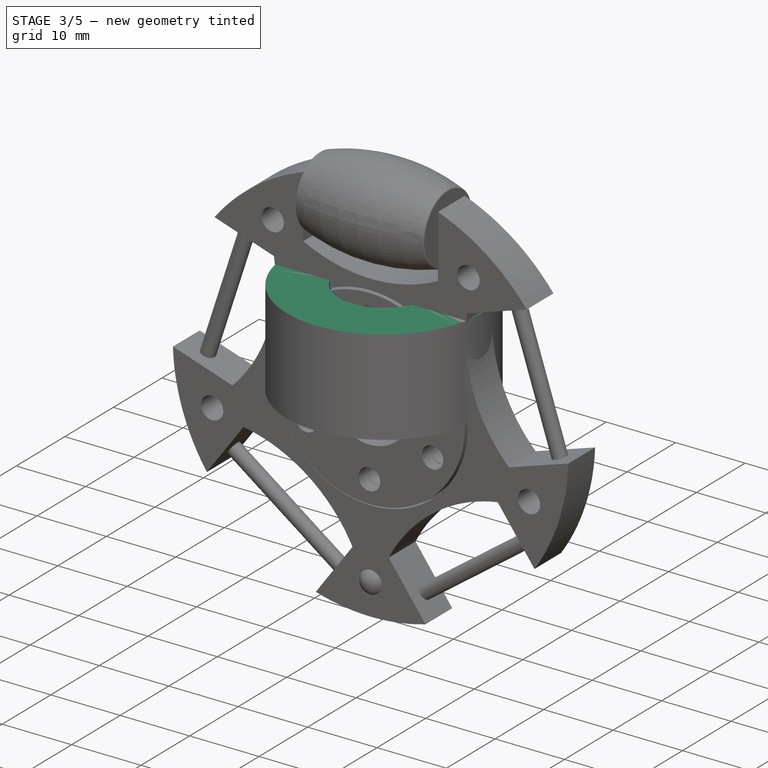
[diagram: stage 3 of 5 — iso view after this stage's code; geometry added in this stage tinted green]
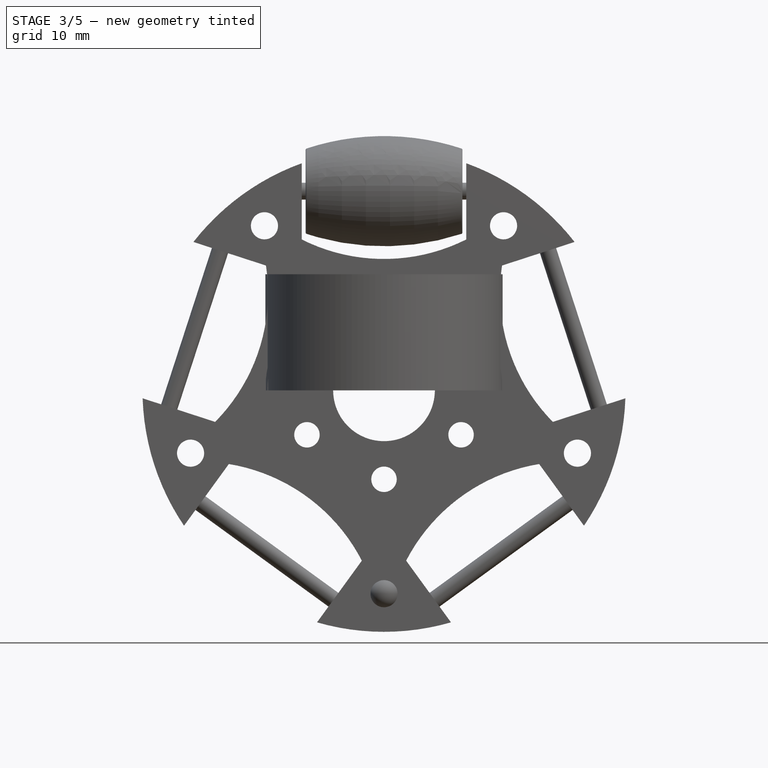
[diagram: stage 3 of 5 — front view after this stage's code; geometry added in this stage tinted green]
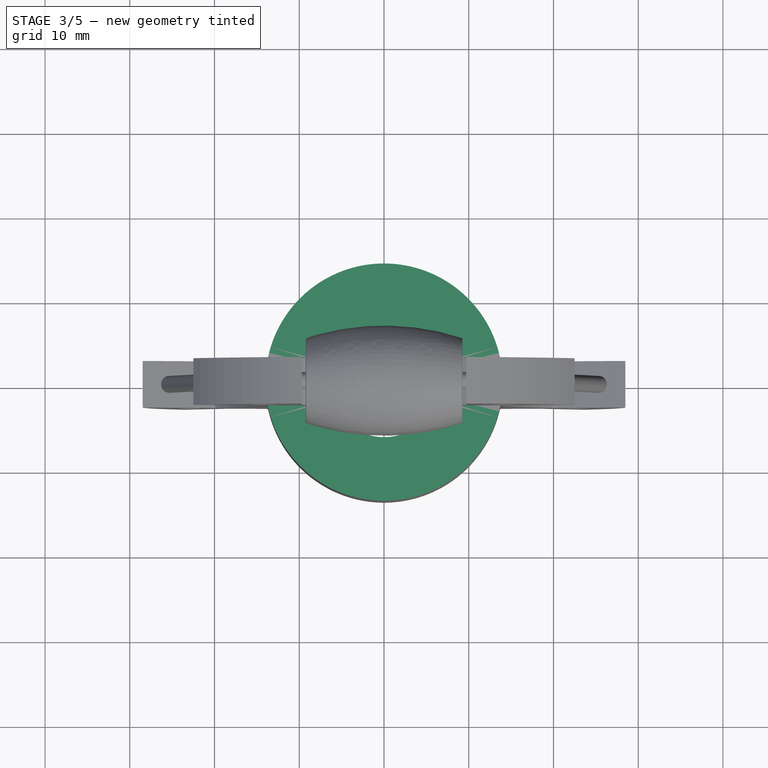
[diagram: stage 3 of 5 — top view after this stage's code; geometry added in this stage tinted green]
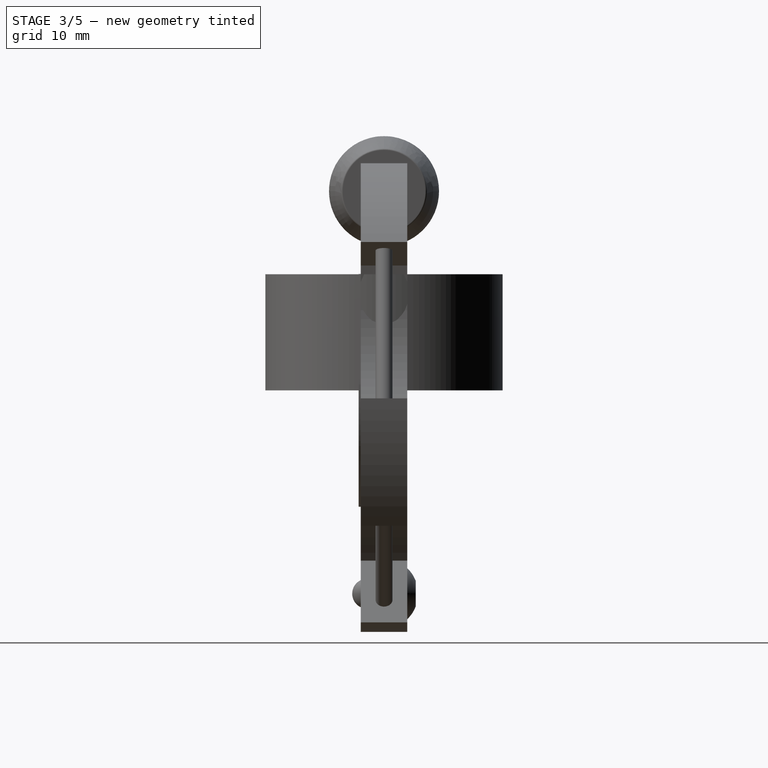
[diagram: stage 3 of 5 — right view after this stage's code; geometry added in this stage tinted green]
FEATURE [PartDesign::Body] Body046  label="Plate"
  AutoGroupSolids = false
  ClaimAllChildren = false
  ExportMode = 0
  Group = -> [Sketch021,Pad056,Sketch094,Pocket035,PolarPattern016]
  InvalidShape = false
  Origin = -> Origin070
  SingleSolid = true
  Tip = -> PolarPattern016
  TreeRank = 0
  ValidateShape = true
  _ExportChildren = -> [Pad056,Pocket035,PolarPattern016]
  _GroupVersion = 1
FEATURE [App::Part] Part017  label="ExternalPlate"
  ClaimAllChildren = false
  ExportMode = 1
  Group = -> [Body046,Link080]
  Origin = -> Origin066
  TreeRank = 0
  _ExportChildren = -> [Body046,Link080]
  _GroupVersion = 1
FEATURE [App::Link] Link082  label="Link082(MR148)"
  AutoLinkLabel = true
  AutoPlacement = true
  LinkPlacement = pos=(0,1.19211e-07,-1) rot=(1,0,0;3.14159rad)
  LinkedObject = -> <external generic-hardware.FCStd>#Part001
  Placement = pos=(0,1.19211e-07,-1) rot=(1,0,0;3.14159rad)
  SyncGroupVisibility = false
  TreeRank = 0
  _LinkVersion = 1
FEATURE [App::Link] Link083  label="Link083(MR148)"
  AutoLinkLabel = true
  AutoPlacement = true
  LinkPlacement = pos=(0,-1.63317e-06,13.7) rot=(1,0,0;3.14159rad)
  LinkedObject = -> <external generic-hardware.FCStd>#Part001
  Placement = pos=(0,-1.63317e-06,13.7) rot=(1,0,0;3.14159rad)
  SyncGroupVisibility = false
  TreeRank = 0
  _LinkVersion = 1
FEATURE [Sketcher::SketchObject] Sketch105
  ArcFitTolerance = 0
  AttachmentSupport = -> [XY_Plane059]
  ExternalBSplineMaxDegree = 0
  ExternalBSplineTolerance = 0
  FullyConstrained = true
  InternalTolerance = 1e-06
  InvalidShape = false
  MakeInternals = false
  MapMode = 5
  Support = -> [XY_Plane059]
  TreeRank = 0
  ValidateShape = true
  sketch-geometry (2):
    g0: Circle CenterX=0 CenterY=0 CenterZ=0 NormalX=0 NormalY=0 NormalZ=1 AngleXU=0 Radius=14
    g1: Circle CenterX=0 CenterY=0 CenterZ=0 NormalX=0 NormalY=0 NormalZ=1 AngleXU=0 Radius=6.5
  constraints (4):
    c: Coincident(g0,g-1)
    c: Coincident(g1,g0)
    c: Diameter(g1) = 13
    c: Diameter(g0) = 28
FEATURE [PartDesign::Pad] Pad061
  AddSubType = 0
  AutoTaperInnerAngle = false
  CheckUpToFaceLimits = true
  ClaimChildren = false
  Direction = (1,1,1)
  Fit = 0
  FitJoin = 0
  InnerFit = 0
  InnerFitJoin = 0
  InvalidShape = false
  Length = 13.7
  Length2 = 100
  NewSolid = false
  Profile = -> Sketch105
  Refine = true
  Suppress = false
  TaperInnerAngle = 0
  TaperInnerAngleRev = 0
  TreeRank = 0
  Type = 0
  UsePipeForDraft = true
  ValidateShape = true
  _ProfileBasedVersion = 0
FEATURE [Sketcher::SketchObject] Sketch102
  ArcFitTolerance = 0
  AttachmentSupport = -> [XY_Plane058]
  ExternalBSplineMaxDegree = 0
  ExternalBSplineTolerance = 0
  FullyConstrained = true
  InternalTolerance = 1e-06
  InvalidShape = false
  MakeInternals = false
  MapMode = 5
  Support = -> [XY_Plane058]
  TreeRank = 0
  ValidateShape = true
  sketch-geometry (1):
    g0: Circle CenterX=0 CenterY=0 CenterZ=0 NormalX=0 NormalY=0 NormalZ=1 AngleXU=0 Radius=7.15
  constraints (2):
    c: Coincident(g0,g-1)
    c: Diameter(g0) = 14.3
FEATURE [PartDesign::Pocket] Pocket039
  AddSubType = 1
  AutoTaperInnerAngle = false
  BaseFeature = -> Pad060
  CheckUpToFaceLimits = true
  ClaimChildren = false
  Fit = 0
  FitJoin = 0
  InnerFit = 0
  InnerFitJoin = 0
  InvalidShape = false
  Length = 4
  Length2 = 100
  NewSolid = false
  Profile = -> Sketch102
  Refine = true
  Reversed = true
  Suppress = false
  TaperInnerAngle = 0
  TaperInnerAngleRev = 0
  TreeRank = 0
  Type = 0
  ValidateShape = true
  _ProfileBasedVersion = 0
  _Version = 0
FEATURE [Sketcher::SketchObject] Sketch103
  ArcFitTolerance = 0
  AttachmentSupport = -> [XY_Plane058]
  ExternalBSplineMaxDegree = 0
  ExternalBSplineTolerance = 0
  FullyConstrained = true
  InternalTolerance = 1e-06
  InvalidShape = false
  MakeInternals = false
  MapMode = 5
  Support = -> [XY_Plane058]
  TreeRank = 0
  ValidateShape = true
  sketch-geometry (1):
    g0: Circle CenterX=0 CenterY=10.5 CenterZ=0 NormalX=0 NormalY=0 NormalZ=1 AngleXU=0 Radius=1.75
  constraints (3):
    c: PointOnObject(g0,g-2)
    c: Diameter(g0) = 3.5
    c: DistanceY(g-1,g0) = 10.5
FEATURE [PartDesign::Pocket] Pocket040
  AddSubType = 1
  AutoTaperInnerAngle = false
  BaseFeature = -> Pocket039
  CheckUpToFaceLimits = true
  ClaimChildren = false
  Fit = 0
  FitJoin = 0
  InnerFit = 0
  InnerFitJoin = 0
  InvalidShape = false
  Length = 5
  Length2 = 100
  NewSolid = false
  Profile = -> Sketch103
  Refine = true
  Reversed = true
  Suppress = false
  TaperInnerAngle = 0
  TaperInnerAngleRev = 0
  TreeRank = 0
  Type = 1
  ValidateShape = true
  _ProfileBasedVersion = 0
  _Version = 0
FEATURE [PartDesign::PolarPattern] PolarPattern021
  AddSubType = 0
  Angle = 360
  Axis = -> Sketch103 [N_Axis]
  BaseFeature = -> Pocket040
  CopyShape = false
  InvalidShape = false
  NewSolid = false
  Occurrences = 6
  OriginalSubs = -> [Pocket040]
  Originals = -> [Pocket040]
  ParallelTransform = true
  Refine = true
  SubTransform = true
  Suppress = false
  TreeRank = 0
  ValidateShape = true
  _Version = 0
FEATURE [PartDesign::Plane] DatumPlane006
  AttachmentOffset = pos=(0,0,11) rot=(0,0,1;0rad)
  AttachmentSupport = -> [XY_Plane058]
  InvalidShape = false
  Length = 28
  MapMode = 5
  MinimumLength = 10
  MinimumWidth = 10
  Placement = pos=(0,0,11) rot=(0,0,1;0rad)
  ResizeMode = 0
  Support = -> [XY_Plane058]
  TreeRank = 0
  ValidateShape = true
  Width = 28
  expr: AttachmentOffset.Base.z = Pad060.Length
FEATURE [Sketcher::SketchObject] Sketch104
  ArcFitTolerance = 0
  AttachmentSupport = -> [DatumPlane006]
  ExternalBSplineMaxDegree = 0
  ExternalBSplineTolerance = 0
  FullyConstrained = true
  InternalTolerance = 1e-06
  InvalidShape = false
  MakeInternals = false
  MapMode = 5
  Placement = pos=(0,0,11) rot=(0,0,1;0rad)
  Support = -> [DatumPlane006]
  TreeRank = 0
  ValidateShape = true
  sketch-geometry (1):
    g0: Circle CenterX=0 CenterY=-10.5 CenterZ=0 NormalX=0 NormalY=0 NormalZ=1 AngleXU=0 Radius=2.05
  constraints (3):
    c: PointOnObject(g0,g-2)
    c: Diameter(g0) = 4.1
    c: DistanceY(g0,g-1) = 10.5
FEATURE [PartDesign::Pocket] Pocket041
  AddSubType = 1
  AutoTaperInnerAngle = false
  BaseFeature = -> PolarPattern021
  CheckUpToFaceLimits = true
  ClaimChildren = false
  Fit = 0
  FitJoin = 0
  InnerFit = 0
  InnerFitJoin = 0
  InvalidShape = false
  Length = 7
  Length2 = 100
  NewSolid = false
  Profile = -> Sketch104
  Refine = true
  Suppress = false
  TaperInnerAngle = 0
  TaperInnerAngleRev = 0
  TreeRank = 0
  Type = 0
  ValidateShape = true
  _ProfileBasedVersion = 0
  _Version = 0
FEATURE [PartDesign::PolarPattern] PolarPattern022
  AddSubType = 0
  Angle = 360
  Axis = -> Sketch104 [N_Axis]
  BaseFeature = -> Pocket041
  CopyShape = false
  InvalidShape = false
  NewSolid = false
  Occurrences = 3
  OriginalSubs = -> [Pocket041]
  Originals = -> [Pocket041]
  ParallelTransform = true
  Refine = true
  SubTransform = true
  Suppress = false
  TreeRank = 0
  ValidateShape = true
  _Version = 0
FEATURE [PartDesign::Chamfer] Chamfer037
  AddSubType = 0
  Angle = 45
  Base = -> PolarPattern022 [Edge19,Edge28,Edge25]
  BaseFeature = -> PolarPattern022
  ChamferType = 0
  FlipDirection = false
  InvalidShape = false
  NewSolid = false
  Refine = true
  Size = 0.25
  Size2 = 1
  SupportTransform = false
  Suppress = false
  TreeRank = 0
  ValidateShape = true
FEATURE [PartDesign::Chamfer] Chamfer036
  AddSubType = 0
  Angle = 45
  Base = -> Chamfer037 [Face13,Face3]
  BaseFeature = -> Chamfer037
  ChamferType = 0
  FlipDirection = false
  InvalidShape = false
  NewSolid = false
  Refine = true
  Size = 0.4
  Size2 = 1
  SupportTransform = false
  Suppress = false
  TreeRank = 0
  ValidateShape = true
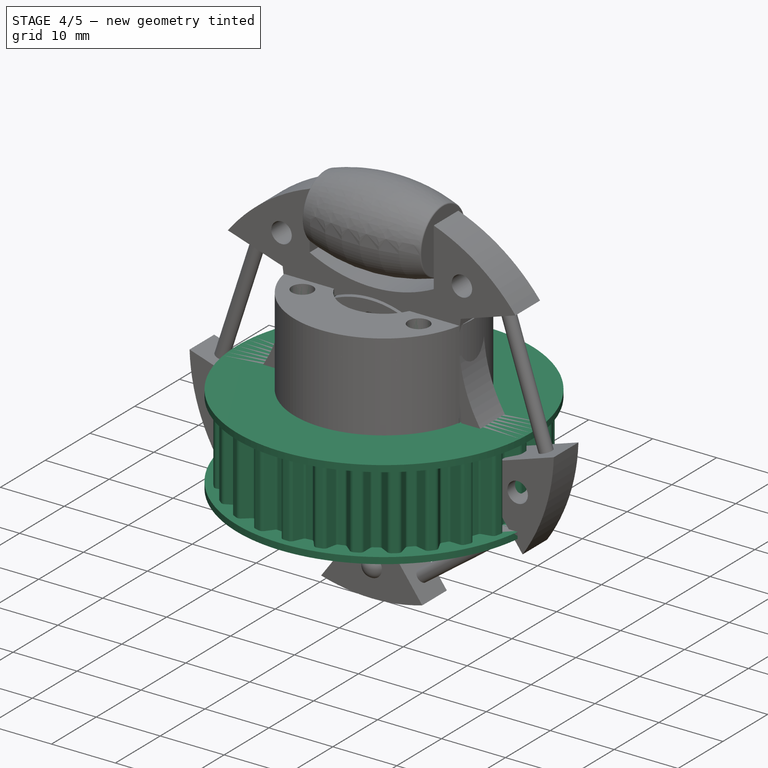
[diagram: stage 4 of 5 — iso view after this stage's code; geometry added in this stage tinted green]
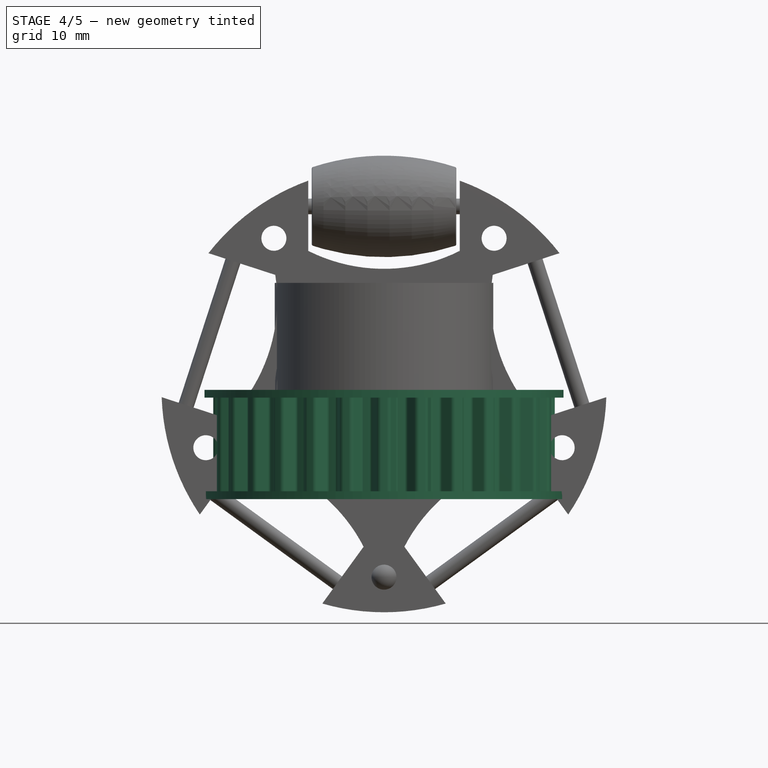
[diagram: stage 4 of 5 — front view after this stage's code; geometry added in this stage tinted green]
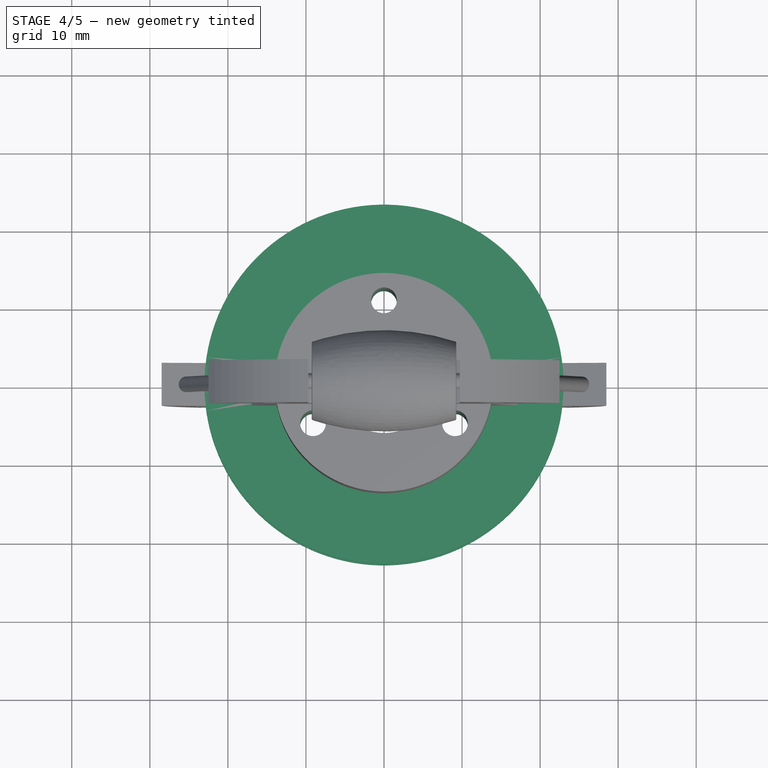
[diagram: stage 4 of 5 — top view after this stage's code; geometry added in this stage tinted green]
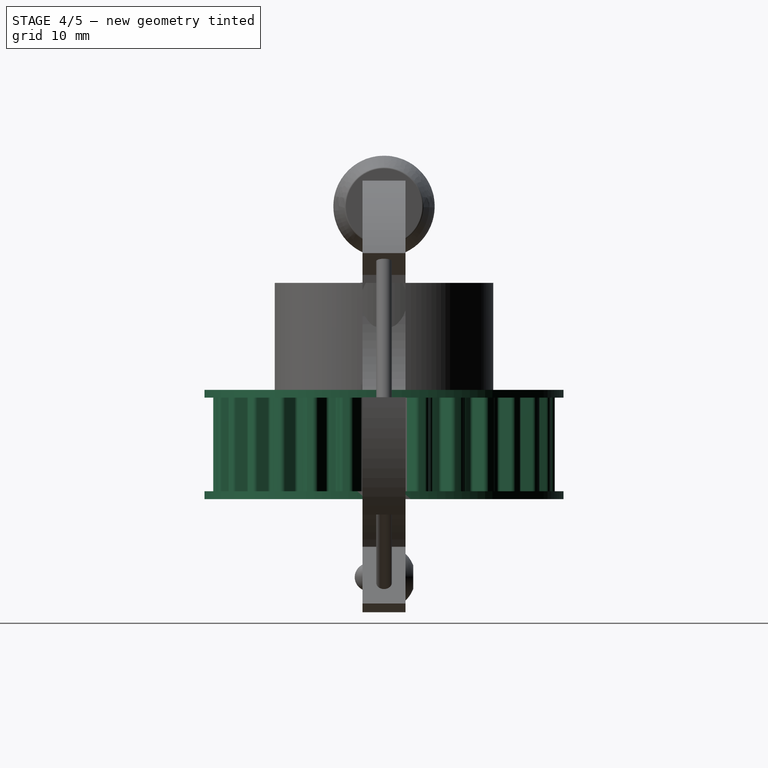
[diagram: stage 4 of 5 — right view after this stage's code; geometry added in this stage tinted green]
FEATURE [Sketcher::SketchObject] Sketch106
  ArcFitTolerance = 0
  AttachmentSupport = -> [XY_Plane059]
  ExternalBSplineMaxDegree = 0
  ExternalBSplineTolerance = 0
  ExternalGeometry = -> [Pad061]
  FullyConstrained = true
  InternalTolerance = 1e-06
  InvalidShape = false
  MakeInternals = false
  MapMode = 5
  Support = -> [XY_Plane059]
  TreeRank = 0
  ValidateShape = true
  sketch-geometry (1):
    g0: Circle CenterX=0 CenterY=0 CenterZ=0 NormalX=0 NormalY=0 NormalZ=1 AngleXU=0 Radius=23
  constraints (2):
    c: Diameter(g0) = 46
    c: Coincident(g0,g-3)
FEATURE [PartDesign::Pad] Pad062
  AddSubType = 0
  AutoTaperInnerAngle = false
  BaseFeature = -> Pad061
  CheckUpToFaceLimits = true
  ClaimChildren = false
  Direction = (1,1,1)
  Fit = 0
  FitJoin = 0
  InnerFit = 0
  InnerFitJoin = 0
  InvalidShape = false
  Length = 1
  Length2 = 100
  NewSolid = false
  Profile = -> Sketch106
  Refine = true
  Reversed = true
  Suppress = false
  TaperInnerAngle = 0
  TaperInnerAngleRev = 0
  TreeRank = 0
  Type = 0
  UsePipeForDraft = true
  ValidateShape = true
  _ProfileBasedVersion = 0
FEATURE [Sketcher::SketchObject] Sketch107
  ArcFitTolerance = 0
  AttachmentSupport = -> [Pad062]
  ExternalBSplineMaxDegree = 0
  ExternalBSplineTolerance = 0
  ExternalGeometry = -> [Pad062]
  FullyConstrained = true
  InternalTolerance = 1e-06
  InvalidShape = false
  MakeInternals = false
  MapMode = 5
  Placement = pos=(0,0,-1) rot=(1,0,0;3.14159rad)
  Support = -> [Pad062]
  TreeRank = 0
  ValidateShape = true
  sketch-geometry (21):
    g0: Circle [constr] CenterX=0 CenterY=0 CenterZ=0 NormalX=0 NormalY=0 NormalZ=1 AngleXU=0 Radius=21.875
    g1: Circle [constr] CenterX=0 CenterY=0 CenterZ=0 NormalX=0 NormalY=0 NormalZ=1 AngleXU=0 Radius=20.075
    g2: GeomPoint [constr] X=0 Y=20.075 Z=0
    g3: GeomPoint [constr] X=0 Y=21.875 Z=0
    g4: ArcOfCircle CenterX=-1.1e-15 CenterY=0 CenterZ=0 NormalX=0 NormalY=0 NormalZ=1 AngleXU=0 Radius=21.875 StartAngle=1.55372 EndAngle=1.58787
    g5: ArcOfCircle CenterX=-1.1e-15 CenterY=0 CenterZ=0 NormalX=0 NormalY=0 NormalZ=1 AngleXU=0 Radius=20.075 StartAngle=1.66267 EndAngle=1.68863
    g6: ArcOfCircle CenterX=-1.1e-15 CenterY=0 CenterZ=0 NormalX=0 NormalY=0 NormalZ=1 AngleXU=0 Radius=20.075 StartAngle=1.45297 EndAngle=1.47892
    g7: LineSegment StartX=-1.51593 StartY=20.2196 StartZ=0 EndX=-0.906991 EndY=21.5255 EndZ=0
    g8: LineSegment StartX=0.906991 StartY=21.5255 StartZ=0 EndX=1.51593 EndY=20.2196 EndZ=0
    g9: LineSegment StartX=-2.35996 StartY=19.9358 StartZ=0 EndX=-0.764123 EndY=6.45493 EndZ=0
    g10: LineSegment StartX=2.35996 StartY=19.9358 StartZ=0 EndX=0.764123 EndY=6.45493 EndZ=0
    g11: ArcOfCircle CenterX=-1.1e-15 CenterY=0 CenterZ=0 NormalX=0 NormalY=0 NormalZ=1 AngleXU=0 Radius=6.5 StartAngle=1.45297 EndAngle=1.68863
    g12: ArcOfCircle CenterX=-0.363207 CenterY=21.2719 CenterZ=0 NormalX=0 NormalY=0 NormalZ=1 AngleXU=0 Radius=0.6 StartAngle=1.58787 EndAngle=2.70526
    g13: ArcOfCircle CenterX=0.363207 CenterY=21.2719 CenterZ=0 NormalX=0 NormalY=0 NormalZ=1 AngleXU=0 Radius=0.6 StartAngle=0.436332 EndAngle=1.55372
    g14: ArcOfCircle CenterX=-1.87845 CenterY=20.3887 CenterZ=0 NormalX=0 NormalY=0 NormalZ=1 AngleXU=0 Radius=0.4 StartAngle=4.80426 EndAngle=5.84685
    g15: ArcOfCircle CenterX=1.87845 CenterY=20.3887 CenterZ=0 NormalX=0 NormalY=0 NormalZ=1 AngleXU=0 Radius=0.4 StartAngle=3.57792 EndAngle=4.62052
    g16: ArcOfCircle [constr] CenterX=-1.1e-15 CenterY=0 CenterZ=0 NormalX=0 NormalY=0 NormalZ=1 AngleXU=0 Radius=20.075 StartAngle=1.65126 EndAngle=1.68863
    g17: ArcOfCircle [constr] CenterX=-1.1e-15 CenterY=0 CenterZ=0 NormalX=0 NormalY=0 NormalZ=1 AngleXU=0 Radius=20.075 StartAngle=1.45297 EndAngle=1.49033
    g18: ArcOfCircle [constr] CenterX=-1.1e-15 CenterY=0 CenterZ=0 NormalX=0 NormalY=0 NormalZ=1 AngleXU=0 Radius=21.875 StartAngle=1.5365 EndAngle=1.60509
    g19: LineSegment [constr] StartX=-1.61365 StartY=20.01 StartZ=0 EndX=-0.75 EndY=21.8621 EndZ=0
    g20: LineSegment [constr] StartX=1.61365 StartY=20.01 StartZ=0 EndX=0.75 EndY=21.8621 EndZ=0
  constraints (54):
    c: Coincident(g0,g-1)
    c: Diameter(g0) = 43.75
    c: Coincident(g1,g-1)
    c: PointOnObject(g2,g1)
    c: PointOnObject(g3,g0)
    c: PointOnObject(g3,g-2)
    c: PointOnObject(g2,g-2)
    c: DistanceY(g2,g3) = 1.8
    c: Coincident(g4,g-1)
    c: Coincident(g5,g4)
    c: PointOnObject(g5,g1)
    c: Coincident(g6,g4)
    c: Symmetric(g5,g6,g-2)
    c: Angle(g7,g-2) = 0.436332
    c: Coincident(g9,g5)
    c: Coincident(g10,g6)
    c: PointOnObject(g10,g-3)
    c: Coincident(g11,g4)
    c: Coincident(g11,g9)
    c: Coincident(g11,g10)
    c: Symmetric(g9,g10,g-2)
    c: PointOnObject(g4,g9)
    c: Tangent(g4,g12) = -1.5708
    c: Tangent(g7,g12) = 1.5708
    c: Tangent(g4,g13) = -1.5708
    c: Tangent(g8,g13) = 1.5708
    c: Tangent(g7,g14) = -1.5708
    c: Tangent(g5,g14) = 1.5708
    c: Tangent(g6,g15) = 1.5708
    c: Tangent(g8,g15) = -1.5708
    c: Equal(g15,g14)
    c: Equal(g12,g13)
    c: Radius(g13) = 0.6
    c: PointOnObject(g4,g0)
    c: Symmetric(g4,g4,g-2)
    c: Equal(g5,g6)
    c: Radius(g14) = 0.4
    c: Coincident(g16,g4)
    c: Coincident(g16,g5)
    c: PointOnObject(g16,g1)
    c: Coincident(g17,g4)
    c: Coincident(g17,g6)
    c: Coincident(g18,g4)
    c: PointOnObject(g18,g0)
    c: Symmetric(g18,g18,g-2)
    c: Symmetric(g16,g17,g-2)
    c: Coincident(g19,g16)
    c: Coincident(g19,g18)
    c: Coincident(g20,g17)
    c: Coincident(g20,g18)
    c: Tangent(g19,g7)
    c: Distance(g5,g16) = 0.75
    c: DistanceX(g18,g18) = 1.5
    c: Tangent(g8,g20)
FEATURE [PartDesign::Pad] Pad063
  AddSubType = 0
  AutoTaperInnerAngle = false
  BaseFeature = -> Pad062
  CheckUpToFaceLimits = true
  ClaimChildren = false
  Direction = (1,1,1)
  Fit = 0
  FitJoin = 0
  InnerFit = 0
  InnerFitJoin = 0
  InvalidShape = false
  Length = 12
  Length2 = 100
  NewSolid = false
  Profile = -> Sketch107
  Refine = true
  Suppress = false
  TaperInnerAngle = 0
  TaperInnerAngleRev = 0
  TreeRank = 0
  Type = 0
  UsePipeForDraft = true
  ValidateShape = true
  _ProfileBasedVersion = 0
FEATURE [PartDesign::PolarPattern] PolarPattern023
  AddSubType = 0
  Angle = 360
  Axis = -> Sketch107 [N_Axis]
  BaseFeature = -> Pad063
  CopyShape = false
  InvalidShape = false
  NewSolid = false
  Occurrences = 28
  OriginalSubs = -> [Pad063]
  Originals = -> [Pad063]
  ParallelTransform = true
  Refine = true
  SubTransform = true
  Suppress = false
  TreeRank = 0
  ValidateShape = true
  _Version = 0
FEATURE [Sketcher::SketchObject] Sketch108
  ArcFitTolerance = 0
  AttachmentSupport = -> [PolarPattern023]
  ExternalBSplineMaxDegree = 0
  ExternalBSplineTolerance = 0
  ExternalGeometry = -> [PolarPattern023]
  FullyConstrained = true
  InternalTolerance = 1e-06
  InvalidShape = false
  MakeInternals = false
  MapMode = 5
  Placement = pos=(0,0,-13) rot=(1,0,0;3.14159rad)
  Support = -> [PolarPattern023]
  TreeRank = 0
  ValidateShape = true
  sketch-geometry (1):
    g0: Circle CenterX=0 CenterY=0 CenterZ=0 NormalX=0 NormalY=0 NormalZ=1 AngleXU=0 Radius=6
  constraints (2):
    c: Coincident(g0,g-1)
    c: Diameter(g0) = 12
FEATURE [PartDesign::Pad] Pad064
  AddSubType = 0
  AutoTaperInnerAngle = false
  BaseFeature = -> PolarPattern023
  CheckUpToFaceLimits = true
  ClaimChildren = false
  Direction = (0,0,-1)
  Fit = 0
  FitJoin = 0
  InnerFit = 0
  InnerFitJoin = 0
  InvalidShape = false
  Length = 1
  Length2 = 100
  NewSolid = false
  Profile = -> Sketch108
  Refine = true
  Suppress = false
  TaperInnerAngle = 0
  TaperInnerAngleRev = 0
  TreeRank = 0
  Type = 0
  UsePipeForDraft = true
  ValidateShape = true
  _ProfileBasedVersion = 0
FEATURE [PartDesign::Plane] DatumPlane007
  AttachmentSupport = -> [Pad064]
  InvalidShape = false
  Length = 46
  MapMode = 45
  MinimumLength = 10
  MinimumWidth = 10
  Placement = pos=(-2.968e-13,2.892e-13,-7) rot=(0,0,1;0rad)
  ResizeMode = 0
  Support = -> [Pad064]
  TreeRank = 0
  ValidateShape = true
  Width = 45.9222
FEATURE [Sketcher::SketchObject] Sketch109
  ArcFitTolerance = 0
  AttachmentSupport = -> [XZ_Plane059]
  ExternalBSplineMaxDegree = 0
  ExternalBSplineTolerance = 0
  ExternalGeometry = -> [PolarPattern023]
  FullyConstrained = true
  InternalTolerance = 1e-06
  InvalidShape = false
  MakeInternals = false
  MapMode = 5
  Placement = pos=(0,0,0) rot=(1,0,0;1.5708rad)
  Support = -> [XZ_Plane059]
  TreeRank = 0
  ValidateShape = true
  sketch-geometry (3):
    g0: LineSegment StartX=20.075 StartY=-1 StartZ=0 EndX=20.075 EndY=-2.8e-15 EndZ=0
    g1: LineSegment StartX=20.075 StartY=-1 StartZ=0 EndX=23 EndY=-5.1e-15 EndZ=0
    g2: LineSegment StartX=20.075 StartY=-2.8e-15 StartZ=0 EndX=23 EndY=0 EndZ=0
  constraints (8):
    c: PointOnObject(g0,g-3)
    c: Vertical(g0)
    c: DistanceY(g0,g0) = 1
    c: DistanceX(g0) = 20.075
    c: Coincident(g1,g0)
    c: Coincident(g1,g-3)
    c: Coincident(g2,g0)
    c: Coincident(g2,g1)
FEATURE [PartDesign::Revolution] Revolution002
  AddSubType = 0
  Angle = 360
  Axis = (-3e-16,3e-16,1)
  Base = (0,0,0)
  BaseFeature = -> Pad064
  ClaimChildren = false
  Fit = 0
  FitJoin = 0
  InnerFit = 0
  InnerFitJoin = 0
  InvalidShape = false
  NewSolid = false
  Profile = -> Sketch109
  ReferenceAxis = -> Z_Axis059
  Refine = true
  Reversed = true
  Suppress = false
  TreeRank = 0
  ValidateShape = true
  _ProfileBasedVersion = 0
FEATURE [PartDesign::Mirrored] Mirrored006
  AddSubType = 0
  BaseFeature = -> Revolution002
  CopyShape = false
  InvalidShape = false
  MirrorPlane = -> DatumPlane007
  NewSolid = false
  OriginalSubs = -> [Revolution002]
  Originals = -> [Revolution002]
  ParallelTransform = true
  Refine = true
  SubTransform = true
  Suppress = false
  TreeRank = 0
  ValidateShape = true
  _Version = 0
FEATURE [Sketcher::SketchObject] Sketch110
  ArcFitTolerance = 0
  AttachmentSupport = -> [XY_Plane059]
  ExternalBSplineMaxDegree = 0
  ExternalBSplineTolerance = 0
  FullyConstrained = true
  InternalTolerance = 1e-06
  InvalidShape = false
  MakeInternals = false
  MapMode = 5
  Support = -> [XY_Plane059]
  TreeRank = 0
  ValidateShape = true
  sketch-geometry (1):
    g0: Circle CenterX=0 CenterY=10.5 CenterZ=0 NormalX=0 NormalY=0 NormalZ=1 AngleXU=0 Radius=1.65
  constraints (3):
    c: PointOnObject(g0,g-2)
    c: DistanceY(g0) = 10.5
    c: Diameter(g0) = 3.3
FEATURE [PartDesign::Pocket] Pocket042
  AddSubType = 1
  AutoTaperInnerAngle = false
  BaseFeature = -> Mirrored006
  CheckUpToFaceLimits = true
  ClaimChildren = false
  Fit = 0
  FitJoin = 0
  InnerFit = 0
  InnerFitJoin = 0
  InvalidShape = false
  Length = 5
  Length2 = 100
  Midplane = true
  NewSolid = false
  Profile = -> Sketch110
  Refine = true
  Suppress = false
  TaperInnerAngle = 0
  TaperInnerAngleRev = 0
  TreeRank = 0
  Type = 1
  ValidateShape = true
  _ProfileBasedVersion = 0
  _Version = 0
FEATURE [PartDesign::PolarPattern] PolarPattern024
  AddSubType = 0
  Angle = 360
  Axis = -> Sketch110 [N_Axis]
  BaseFeature = -> Pocket042
  CopyShape = false
  InvalidShape = false
  NewSolid = false
  Occurrences = 3
  OriginalSubs = -> [Pocket042]
  Originals = -> [Pocket042]
  ParallelTransform = true
  Refine = true
  SubTransform = true
  Suppress = false
  TreeRank = 0
  ValidateShape = true
  _Version = 0
FEATURE [Sketcher::SketchObject] Sketch111
  ArcFitTolerance = 0
  AttachmentSupport = -> [PolarPattern024]
  ExternalBSplineMaxDegree = 0
  ExternalBSplineTolerance = 0
  FullyConstrained = true
  InternalTolerance = 1e-06
  InvalidShape = false
  MakeInternals = false
  MapMode = 5
  Placement = pos=(0,0,-14) rot=(1,0,0;3.14159rad)
  Support = -> [PolarPattern024]
  TreeRank = 0
  ValidateShape = true
  sketch-geometry (1):
    g0: Circle CenterX=0 CenterY=0 CenterZ=0 NormalX=0 NormalY=0 NormalZ=1 AngleXU=0 Radius=7.15
  constraints (2):
    c: Coincident(g0,g-1)
    c: Diameter(g0) = 14.3
FEATURE [PartDesign::Pocket] Pocket043
  AddSubType = 1
  AutoTaperInnerAngle = false
  BaseFeature = -> PolarPattern024
  CheckUpToFaceLimits = true
  ClaimChildren = false
  Fit = 0
  FitJoin = 0
  InnerFit = 0
  InnerFitJoin = 0
  InvalidShape = false
  Length = 4
  Length2 = 100
  Linearize = true
  NewSolid = false
  Profile = -> Sketch111
  Refine = true
  Suppress = false
  TaperInnerAngle = 0
  TaperInnerAngleRev = 0
  TreeRank = 0
  Type = 0
  ValidateShape = true
  _ProfileBasedVersion = 1
  _Version = 0
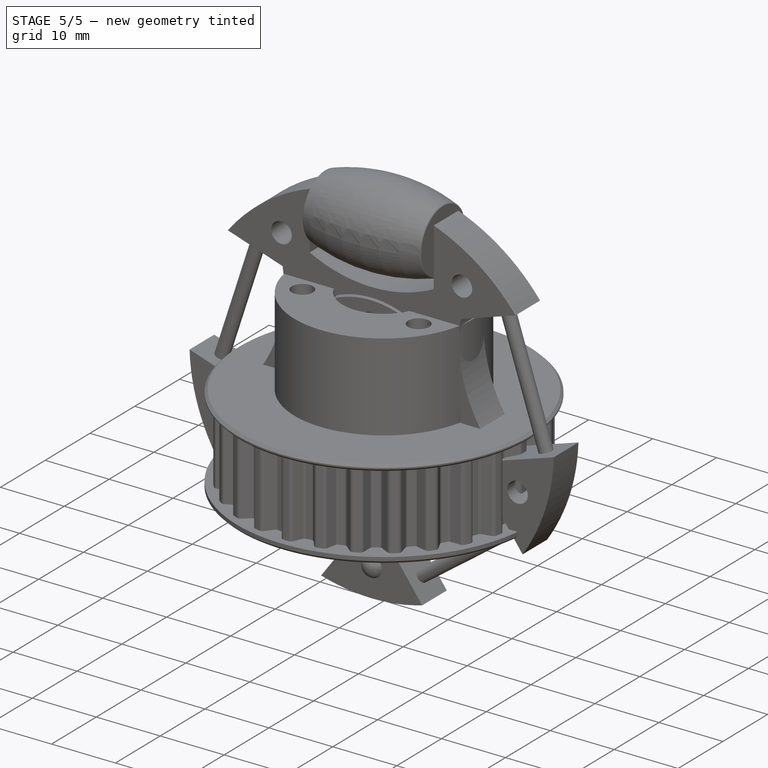
[diagram: stage 5 of 5 — iso view after this stage's code; geometry added in this stage tinted green]
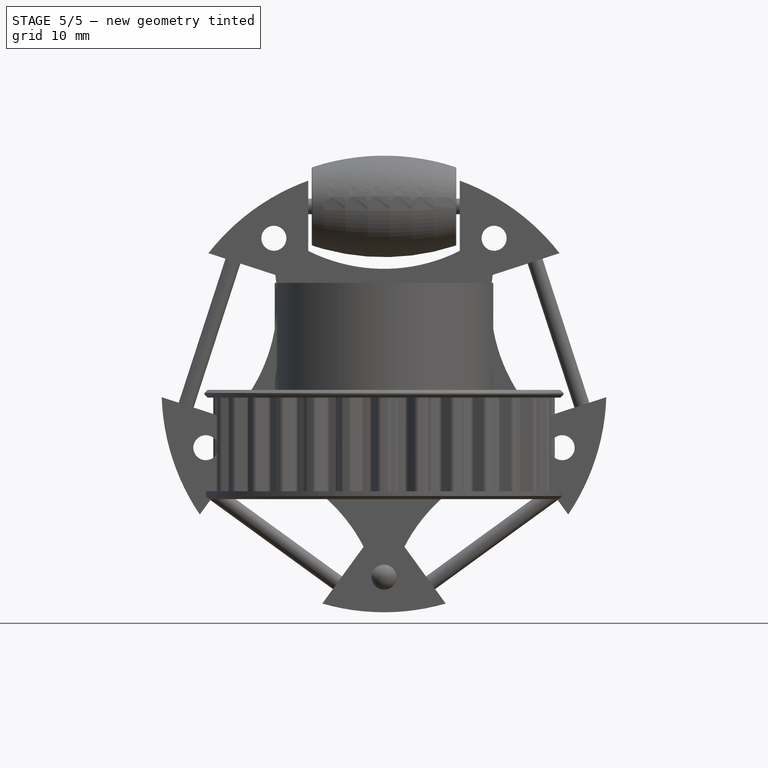
[diagram: stage 5 of 5 — front view after this stage's code; geometry added in this stage tinted green]
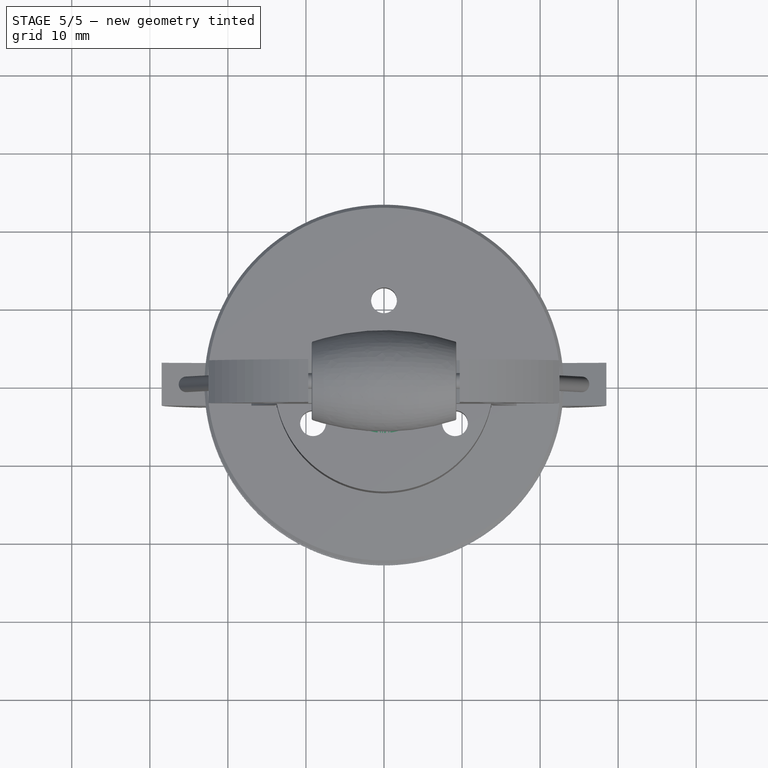
[diagram: stage 5 of 5 — top view after this stage's code; geometry added in this stage tinted green]
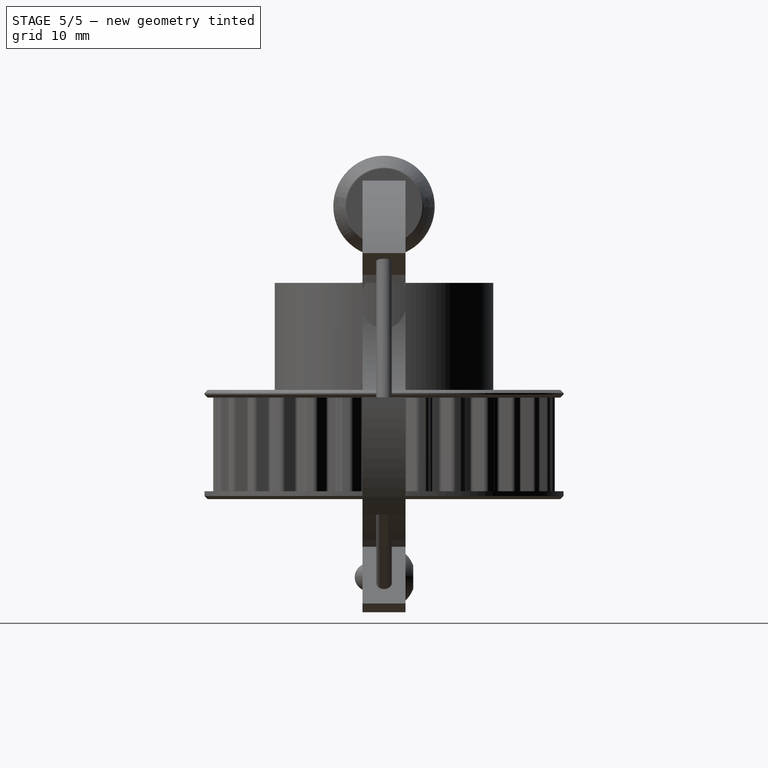
[diagram: stage 5 of 5 — right view after this stage's code; geometry added in this stage tinted green]
FEATURE [Sketcher::SketchObject] Sketch093
  ArcFitTolerance = 0
  AttachmentSupport = -> [XZ_Plane055]
  ExternalBSplineMaxDegree = 0
  ExternalBSplineTolerance = 0
  FullyConstrained = true
  InternalTolerance = 1e-06
  InvalidShape = false
  MakeInternals = false
  MapMode = 5
  Placement = pos=(0,0,0) rot=(1,0,0;1.5708rad)
  Support = -> [XZ_Plane055]
  TreeRank = 0
  ValidateShape = true
  sketch-geometry (2):
    g0: Circle CenterX=0 CenterY=0 CenterZ=0 NormalX=0 NormalY=0 NormalZ=1 AngleXU=0 Radius=4
    g1: Circle CenterX=0 CenterY=0 CenterZ=0 NormalX=0 NormalY=0 NormalZ=1 AngleXU=0 Radius=5.25
  constraints (4):
    c: Coincident(g0,g-1)
    c: Coincident(g1,g0)
    c: Diameter(g0) = 8
    c: Diameter(g1) = 10.5
FEATURE [PartDesign::Pad] Pad055
  AddSubType = 0
  AutoTaperInnerAngle = false
  CheckUpToFaceLimits = true
  ClaimChildren = false
  Direction = (1,1,1)
  Fit = 0
  FitJoin = 0
  InnerFit = 0
  InnerFitJoin = 0
  InvalidShape = false
  Length = 10
  Length2 = 100
  Linearize = true
  NewSolid = false
  Placement = pos=(0,0,0) rot=(1,0,0;1.5708rad)
  Profile = -> Sketch093
  Refine = true
  Suppress = false
  TaperInnerAngle = 0
  TaperInnerAngleRev = 0
  TreeRank = 0
  Type = 0
  ValidateShape = true
  _ProfileBasedVersion = 1
FEATURE [PartDesign::Chamfer] Chamfer033
  AddSubType = 0
  Angle = 45
  Base = -> Pad055 [Edge2,Edge3,Edge6,Edge5]
  BaseFeature = -> Pad055
  ChamferType = 0
  FlipDirection = false
  InvalidShape = false
  NewSolid = false
  Placement = pos=(0,0,0) rot=(1,0,0;1.5708rad)
  Refine = true
  Size = 0.1
  Size2 = 1
  SupportTransform = false
  Suppress = false
  TreeRank = 0
  ValidateShape = true
FEATURE [Sketcher::SketchObject] Sketch112
  ArcFitTolerance = 0
  AttachmentSupport = -> [Pocket043]
  ExternalBSplineMaxDegree = 0
  ExternalBSplineTolerance = 0
  FullyConstrained = true
  InternalTolerance = 1e-06
  InvalidShape = false
  MakeInternals = false
  MapMode = 5
  Placement = pos=(0,0,-14) rot=(1,0,0;3.14159rad)
  Support = -> [Pocket043]
  TreeRank = 0
  ValidateShape = true
  sketch-geometry (1):
    g0: Circle CenterX=0 CenterY=0 CenterZ=0 NormalX=0 NormalY=0 NormalZ=1 AngleXU=0 Radius=7.15
  constraints (2):
    c: Coincident(g0,g-1)
    c: Diameter(g0) = 14.3
FEATURE [PartDesign::Pocket] Pocket044
  AddSubType = 1
  AutoTaperInnerAngle = false
  BaseFeature = -> Pocket043
  CheckUpToFaceLimits = true
  ClaimChildren = false
  Fit = 0
  FitJoin = 0
  InnerFit = 0
  InnerFitJoin = 0
  InvalidShape = false
  Length = 13
  Length2 = 100
  Linearize = true
  NewSolid = false
  Profile = -> Sketch112
  Refine = true
  Suppress = false
  TaperInnerAngle = 0
  TaperInnerAngleRev = 0
  TreeRank = 0
  Type = 0
  ValidateShape = true
  _ProfileBasedVersion = 1
  _Version = 0
FEATURE [Sketcher::SketchObject] Sketch113
  ArcFitTolerance = 0
  AttachmentSupport = -> [PolarPattern024]
  ExternalBSplineMaxDegree = 0
  ExternalBSplineTolerance = 0
  FullyConstrained = false
  InternalTolerance = 1e-06
  InvalidShape = false
  MakeInternals = false
  MapMode = 5
  Placement = pos=(0,0,-14) rot=(1,0,0;3.14159rad)
  Support = -> [PolarPattern024]
  TreeRank = 0
  ValidateShape = true
  sketch-geometry (3):
    g0: Circle CenterX=-9.09327 CenterY=5.25 CenterZ=0 NormalX=0 NormalY=0 NormalZ=1 AngleXU=0 Radius=2.75
    g1: Circle CenterX=9.09327 CenterY=5.25 CenterZ=0 NormalX=0 NormalY=0 NormalZ=1 AngleXU=0 Radius=2.75
    g2: Circle CenterX=0 CenterY=-10.5 CenterZ=0 NormalX=0 NormalY=0 NormalZ=1 AngleXU=0 Radius=2.75
  constraints (3):
    c: Diameter(g1) = 5.5
    c: Equal(g0,g2)
    c: Equal(g2,g1)
FEATURE [PartDesign::Pocket] Pocket045
  AddSubType = 1
  AutoTaperInnerAngle = false
  BaseFeature = -> Pocket044
  CheckUpToFaceLimits = true
  ClaimChildren = false
  Fit = 0
  FitJoin = 0
  InnerFit = 0
  InnerFitJoin = 0
  InvalidShape = false
  Length = 22.7
  Length2 = 100
  Linearize = true
  NewSolid = false
  Profile = -> Sketch113
  Refine = true
  Suppress = false
  TaperInnerAngle = 0
  TaperInnerAngleRev = 0
  TreeRank = 0
  Type = 0
  ValidateShape = true
  _ProfileBasedVersion = 1
  _Version = 0
FEATURE [Sketcher::SketchObject] Sketch031
  ArcFitTolerance = 0
  AttachmentSupport = -> [Pocket045]
  ExternalBSplineMaxDegree = 0
  ExternalBSplineTolerance = 0
  ExternalGeometry = -> [Pocket045]
  FullyConstrained = true
  InternalTolerance = 1e-06
  InvalidShape = false
  MakeInternals = false
  MapMode = 5
  Placement = pos=(0,0,-14) rot=(1,0,0;3.14159rad)
  Support = -> [Pocket045]
  TreeRank = 0
  ValidateShape = true
  sketch-geometry (4):
    g0: ArcOfCircle CenterX=0 CenterY=0 CenterZ=0 NormalX=0 NormalY=0 NormalZ=1 AngleXU=0 Radius=2.75 StartAngle=1e-16 EndAngle=3.14159
    g1: ArcOfCircle CenterX=0 CenterY=-10.5 CenterZ=0 NormalX=0 NormalY=0 NormalZ=1 AngleXU=0 Radius=2.75 StartAngle=3.14159 EndAngle=6.28319
    g2: LineSegment StartX=-2.75 StartY=0 StartZ=0 EndX=-2.75 EndY=-10.5 EndZ=0
    g3: LineSegment StartX=2.75 StartY=3e-16 StartZ=0 EndX=2.75 EndY=-10.5 EndZ=0
  constraints (8):
    c: Tangent(g0,g3) = 1.5708
    c: Tangent(g0,g2) = -1.5708
    c: Tangent(g2,g1) = -1.5708
    c: Tangent(g3,g1) = 1.5708
    c: Vertical(g2)
    c: Coincident(g0,g-1)
    c: Tangent(g1,g-3) = -1.5708
    c: Equal(g1,g-3)
FEATURE [PartDesign::Pocket] Pocket046
  AddSubType = 1
  AutoTaperInnerAngle = false
  BaseFeature = -> Pocket045
  CheckUpToFaceLimits = true
  ClaimChildren = false
  Fit = 0
  FitJoin = 0
  InnerFit = 0
  InnerFitJoin = 0
  InvalidShape = false
  Length = 0
  Length2 = 100
  Linearize = true
  NewSolid = false
  Profile = -> Sketch031
  Refine = true
  Suppress = false
  TaperInnerAngle = 0
  TaperInnerAngleRev = 0
  TreeRank = 0
  Type = 3
  UpToFace = -> Pocket045 [Face235]
  ValidateShape = true
  _ProfileBasedVersion = 1
  _Version = 0
FEATURE [PartDesign::PolarPattern] PolarPattern025
  AddSubType = 0
  Angle = 360
  Axis = -> Sketch031 [N_Axis]
  BaseFeature = -> Pocket046
  CopyShape = false
  InvalidShape = false
  NewSolid = false
  Occurrences = 3
  OriginalSubs = -> [Pocket046]
  Originals = -> [Pocket046]
  ParallelTransform = true
  Refine = true
  SubTransform = true
  Suppress = false
  TreeRank = 0
  ValidateShape = true
  _Version = 2
FEATURE [PartDesign::Fillet] Fillet028
  AddSubType = 0
  Base = -> PolarPattern025 [Edge53,Edge54,Edge43,Edge32,Edge27,Edge12]
  BaseFeature = -> PolarPattern025
  InvalidShape = false
  NewSolid = false
  Radius = 1
  Refine = true
  SupportTransform = false
  Suppress = false
  TreeRank = 0
  ValidateShape = true
FEATURE [PartDesign::Chamfer] Chamfer038
  AddSubType = 0
  Angle = 45
  Base = -> Fillet028 [Face2,Face258,Edge75,Edge74,Edge71]
  BaseFeature = -> Fillet028
  ChamferType = 0
  FlipDirection = false
  InvalidShape = false
  NewSolid = false
  Refine = true
  Size = 0.4
  Size2 = 1
  SupportTransform = false
  Suppress = false
  TreeRank = 0
  ValidateShape = true
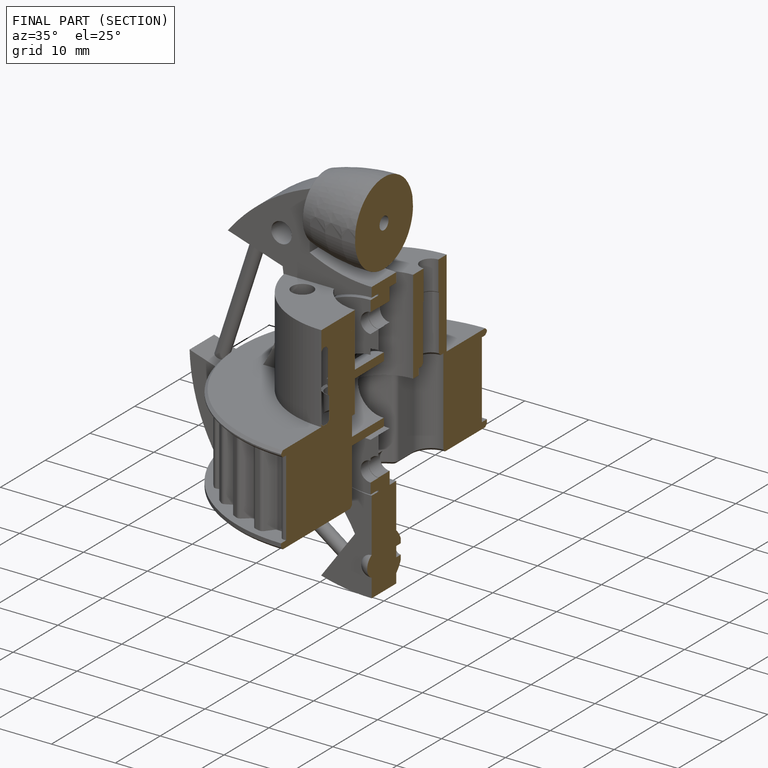
[diagram: finished part — half-section view (interior)]
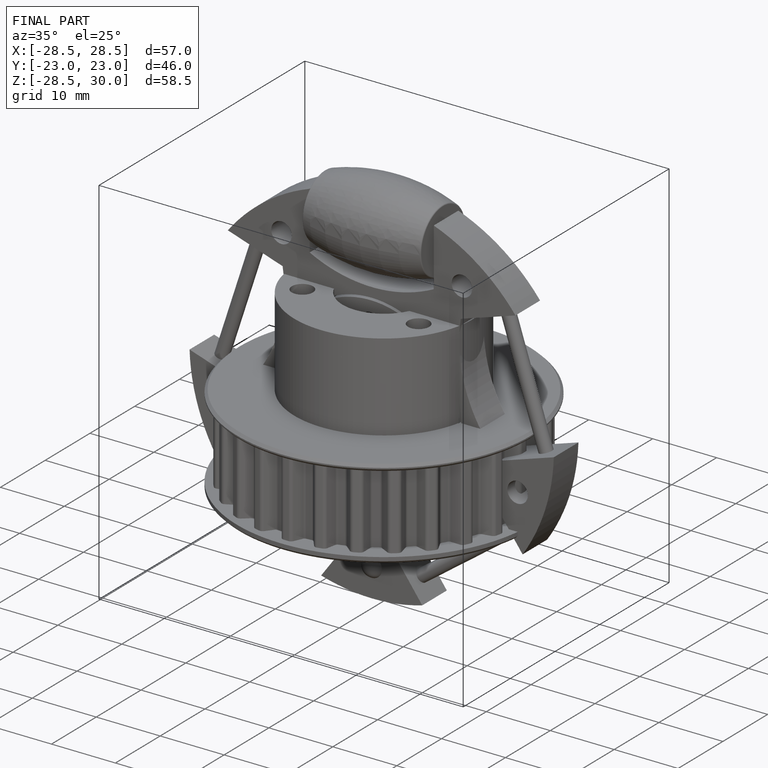
[diagram: finished part — iso view with bounding-box wireframe]
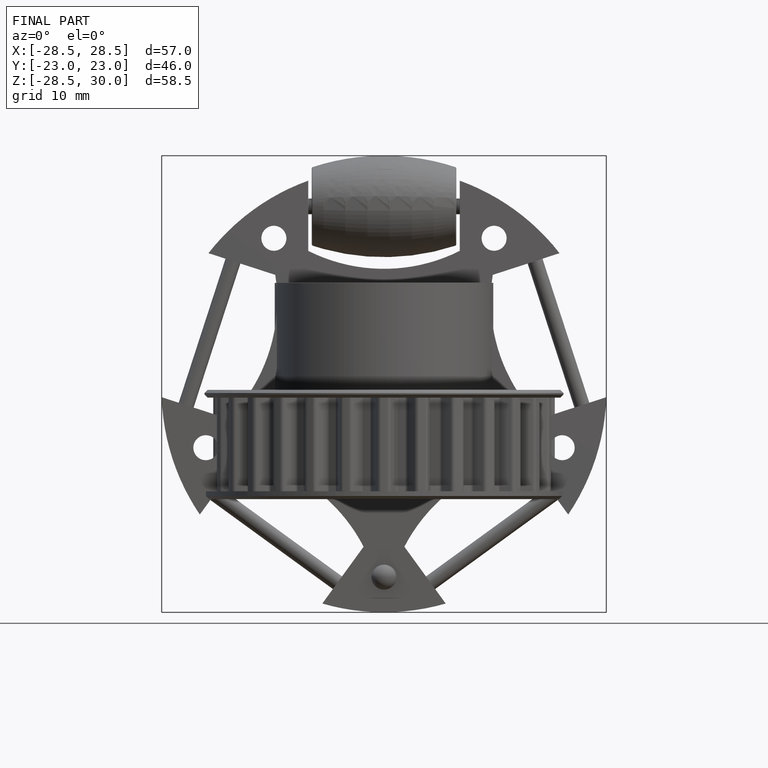
[diagram: finished part — front view with bounding-box wireframe]
